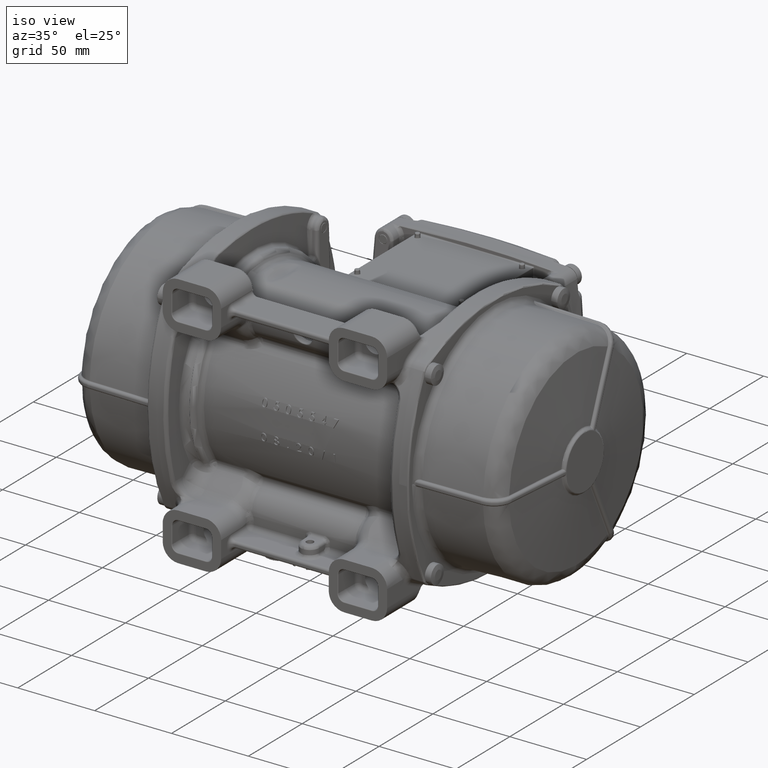
[diagram: clean part render]
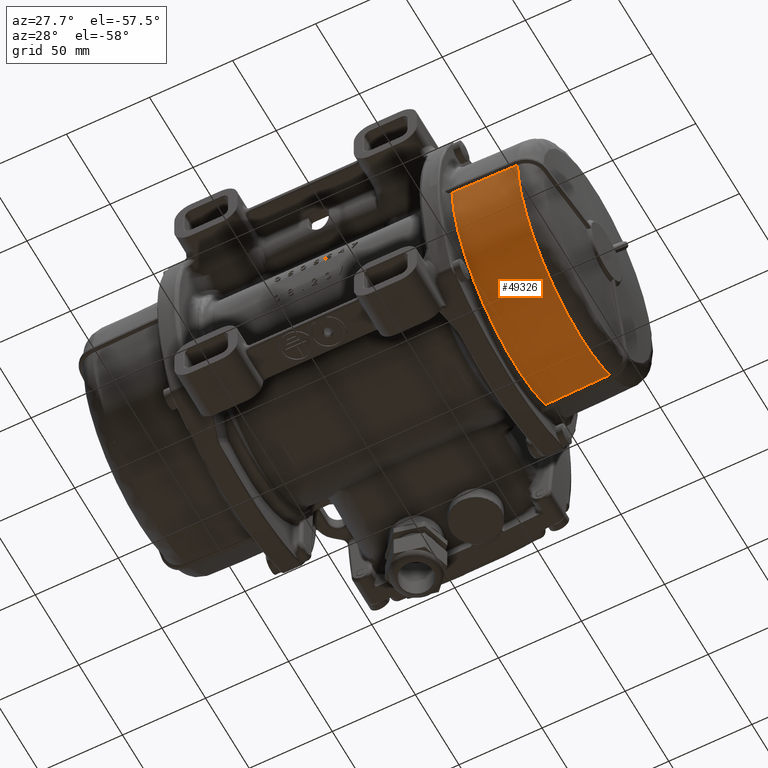
[diagram: tour spotlight — one face highlighted and labeled with its STEP entity id]
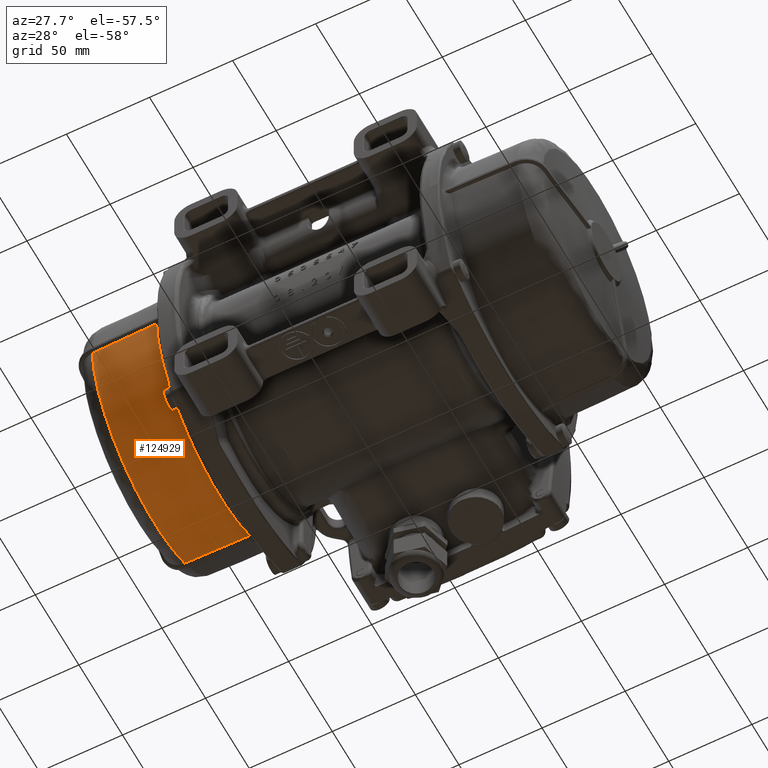
[diagram: tour spotlight — one face highlighted and labeled with its STEP entity id]
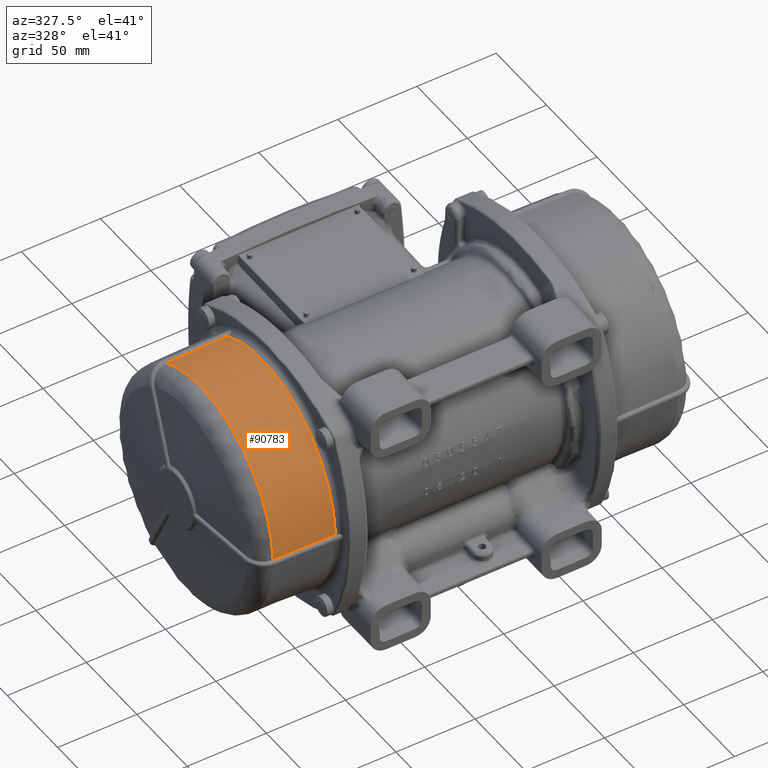
[diagram: tour spotlight — one face highlighted and labeled with its STEP entity id]
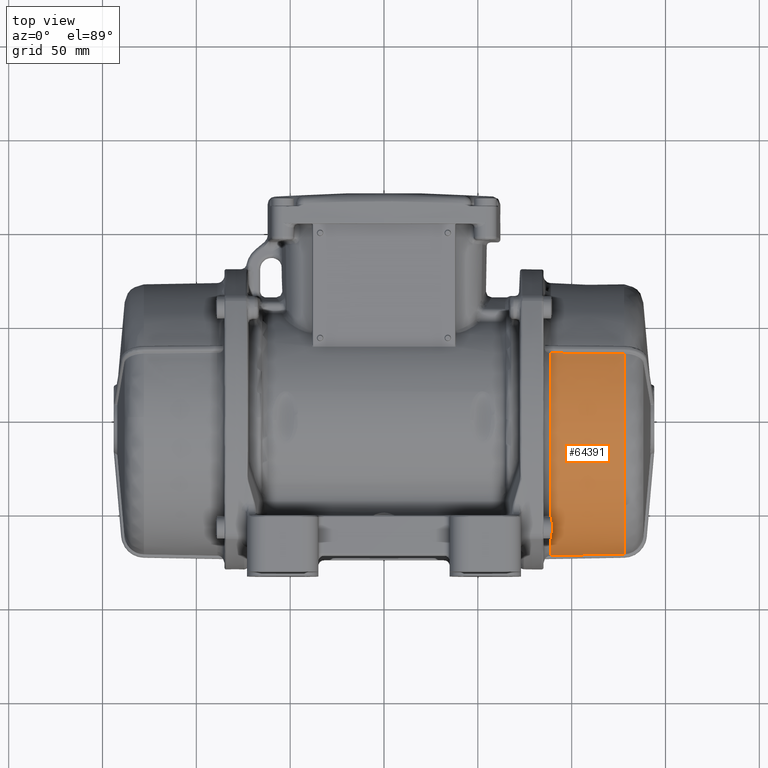
[diagram: tour spotlight — one face highlighted and labeled with its STEP entity id]
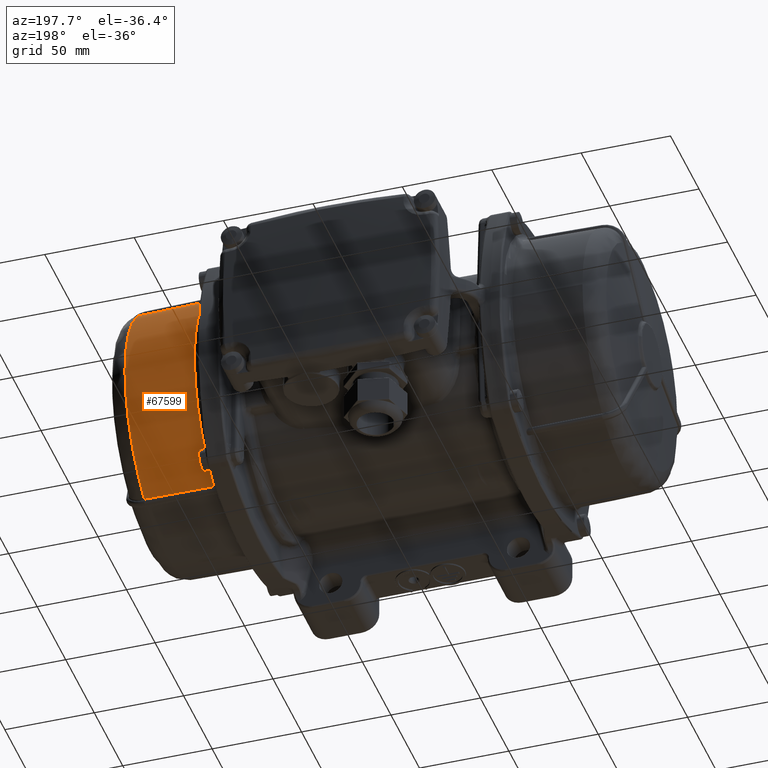
[diagram: tour spotlight — one face highlighted and labeled with its STEP entity id]
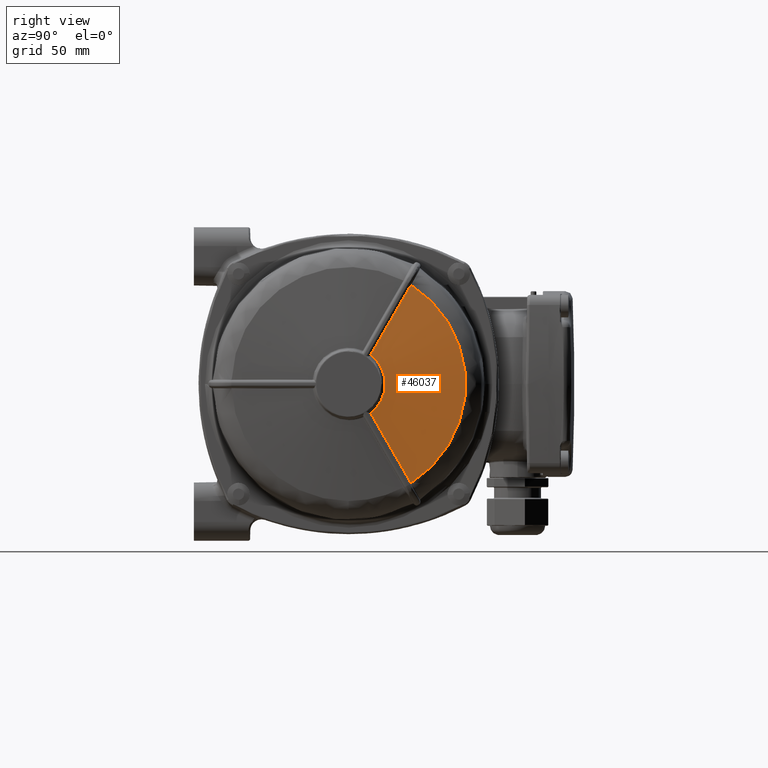
[diagram: tour spotlight — one face highlighted and labeled with its STEP entity id]
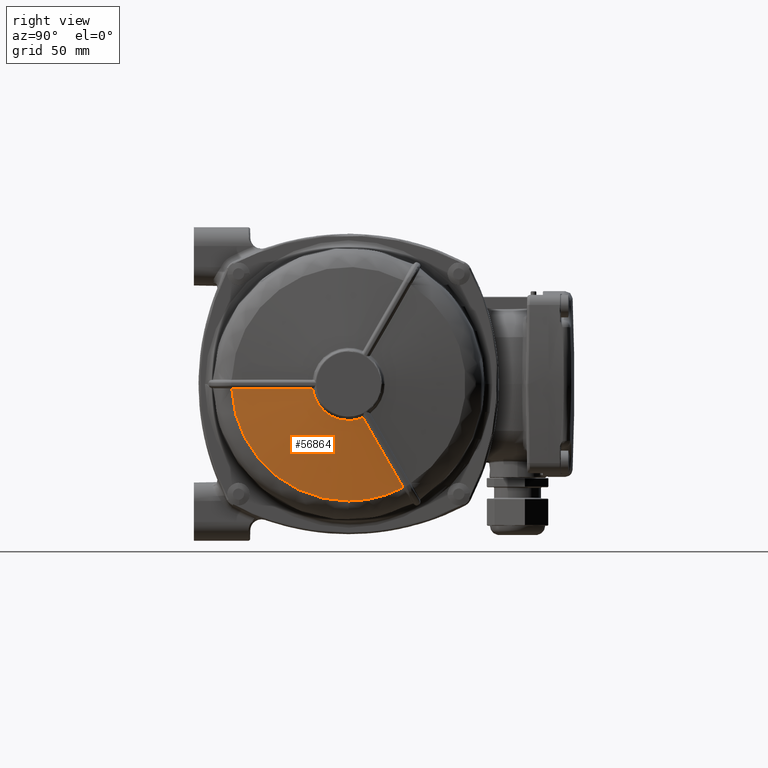
[diagram: tour spotlight — one face highlighted and labeled with its STEP entity id]
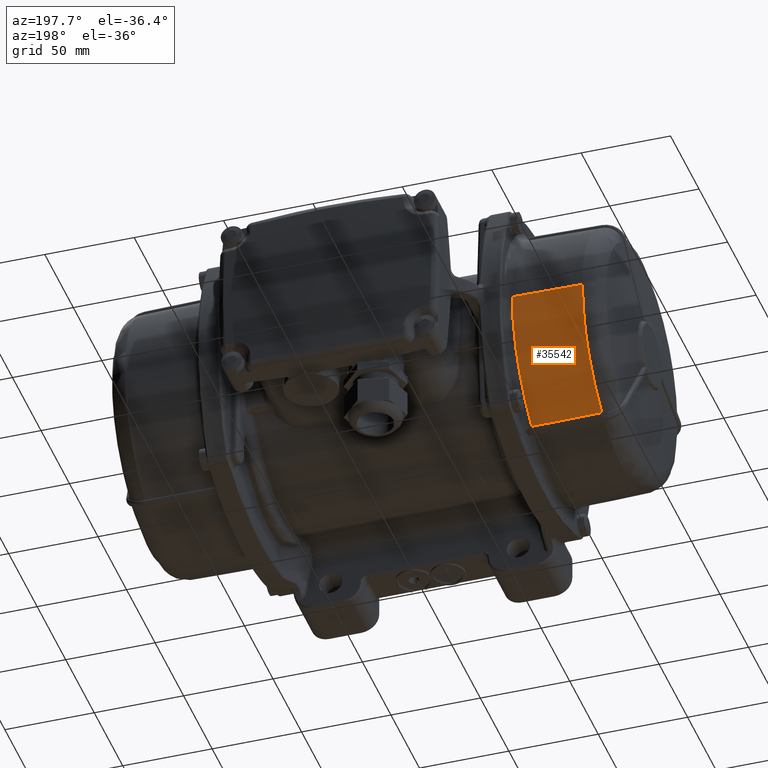
[diagram: tour spotlight — one face highlighted and labeled with its STEP entity id]
A machine part: a face-by-face anatomy tour. The part has 1796 B-rep faces; the first image is the clean iso view, then the 8 largest visible faces are spotlighted one at a time (largest first), each with its STEP entity span.

Face 1 — auxiliary view, entity #49326. In plain terms, the highlighted conical surface has half-angle 1 deg.
Definition (entity closure, byte-faithful):
#2371 = CARTESIAN_POINT ( 'NONE',  ( 127.9222009179933366, -56.33055942910262104, -44.96918742717282669 ) ) ;
#3004 = CARTESIAN_POINT ( 'NONE',  ( 127.9223881733237391, -4.608743817161495393, -71.93134748795786493 ) ) ;
#3615 = CARTESIAN_POINT ( 'NONE',  ( 127.9222441307618681, -46.70256307570493703, -54.90200576169507940 ) ) ;
#5054 = CARTESIAN_POINT ( 'NONE',  ( 127.9220567947570117, 33.88554068718205059, -63.44989925844041068 ) ) ;
#6288 = CARTESIAN_POINT ( 'NONE',  ( 127.9220567947570117, 33.88554068718205059, -63.44989925844041068 ) ) ;
#7252 = ORIENTED_EDGE ( 'NONE', *, *, #10697, .T. ) ;
#9414 = B_SPLINE_CURVE_WITH_KNOTS ( 'NONE', 3,
 ( #70150, #3004, #90700, #22176, #71427, #31735, #99730, #70794, #3615, #99097, #2371, #30492, #100995, #29847, #12598, #50266, #21548, #20921 ),
 .UNSPECIFIED., .F., .F.,
 ( 4, 2, 2, 2, 2, 2, 2, 2, 4 ),
 ( 0.000000000000000000, 0.1249999999999999167, 0.2499999999999998335, 0.3749999999999997780, 0.4999999999999997780, 0.6249999999999997780, 0.7499999999999997780, 0.8750000000000000000, 1.000000000000000000 ),
 .UNSPECIFIED. ) ;
#10697 = EDGE_CURVE ( 'NONE', #53705, #76537, #69317, .T. ) ;
#10960 = CARTESIAN_POINT ( 'NONE',  ( 127.9220568754313945, -71.89199496755290397, -2.379210573208069945 ) ) ;
#12598 = CARTESIAN_POINT ( 'NONE',  ( 127.9221144924561884, -69.08392614389534003, -20.56139853992423028 ) ) ;
#13548 = CARTESIAN_POINT ( 'NONE',  ( 88.93019037425089834, 34.22591339665670063, -64.03970188577260103 ) ) ;
#14908 = CARTESIAN_POINT ( 'NONE',  ( 127.9222873166388723, 11.76082028664047208, -71.20662479822522073 ) ) ;
#19360 = B_SPLINE_CURVE_WITH_KNOTS ( 'NONE', 3,
 ( #72874, #92786, #81237, #5054 ),
 .UNSPECIFIED., .F., .F.,
 ( 4, 4 ),
 ( 0.000000000000000000, 1.000000000000000000 ),
 .UNSPECIFIED. ) ;
#20921 = CARTESIAN_POINT ( 'NONE',  ( 127.9220568754313945, -71.89199496755290397, -2.379210573208069945 ) ) ;
#21548 = CARTESIAN_POINT ( 'NONE',  ( 127.9220712796876285, -71.73955530785151780, -6.985433026160089653 ) ) ;
#22176 = CARTESIAN_POINT ( 'NONE',  ( 127.9223449605551508, -18.26511830160353256, -69.72621338773849686 ) ) ;
#24481 = CARTESIAN_POINT ( 'NONE',  ( 127.9220567947570117, 33.88554068718205059, -63.44989925844041068 ) ) ;
#25412 = ORIENTED_EDGE ( 'NONE', *, *, #101241, .T. ) ;
#27840 = AXIS2_PLACEMENT_3D ( 'NONE', #109927, #99664, #31037 ) ;
#28491 = ORIENTED_EDGE ( 'NONE', *, *, #110291, .T. ) ;
#29847 = CARTESIAN_POINT ( 'NONE',  ( 127.9221288967123371, -67.62131373392264777, -24.95431533131548463 ) ) ;
#30492 = CARTESIAN_POINT ( 'NONE',  ( 127.9221721094809823, -61.60888079395975581, -37.41263988431607146 ) ) ;
#30741 = AXIS2_PLACEMENT_3D ( 'NONE', #74575, #106649, #59088 ) ;
#31037 = DIRECTION ( 'NONE',  ( -3.822452397924781266E-16, 1.000000000000000000, 0.000000000000000000 ) ) ;
#31735 = CARTESIAN_POINT ( 'NONE',  ( 127.9223017477866051, -31.24873919983736670, -64.95287358803322775 ) ) ;
#34046 = CARTESIAN_POINT ( 'NONE',  ( 127.9221720556979989, 23.17003752515295645, -68.35093239662801068 ) ) ;
#35055 = CARTESIAN_POINT ( 'NONE',  ( 88.93019037425099782, -72.57296538218960791, -2.379340473656645027 ) ) ;
#36079 = FACE_OUTER_BOUND ( 'NONE', #57310, .T. ) ;
#40004 = CIRCLE ( 'NONE', #27840, 72.61195883223420822 ) ;
#40241 = B_SPLINE_CURVE_WITH_KNOTS ( 'NONE', 3,
 ( #24481, #82745, #34046, #14908, #125793, #77581 ),
 .UNSPECIFIED., .F., .F.,
 ( 4, 2, 4 ),
 ( 0.000000000000000000, 0.5000000000000000000, 1.000000000000000000 ),
 .UNSPECIFIED. ) ;
#41781 = ORIENTED_EDGE ( 'NONE', *, *, #88454, .T. ) ;
#44355 = VERTEX_POINT ( 'NONE', #13548 ) ;
#48596 = EDGE_CURVE ( 'NONE', #108714, #79716, #40241, .T. ) ;
#49326 = ADVANCED_FACE ( 'NONE', ( #36079 ), #81861, .T. ) ;
#49854 = CARTESIAN_POINT ( 'NONE',  ( 114.9247679879215980, -72.11898394289170255, -2.379323840899814968 ) ) ;
#50266 = CARTESIAN_POINT ( 'NONE',  ( 127.9220856839438341, -71.14307031300077711, -11.57685536552211580 ) ) ;
#53705 = VERTEX_POINT ( 'NONE', #71750 ) ;
#56723 = CARTESIAN_POINT ( 'NONE',  ( 127.9224025775800015, 4.284600312251070252E-13, -71.93134723653049889 ) ) ;
#57310 = EDGE_LOOP ( 'NONE', ( #25412, #28491, #62802, #41781, #7252 ) ) ;
#59088 = DIRECTION ( 'NONE',  ( 1.911226198962390633E-16, -1.000000000000000000, 0.000000000000000000 ) ) ;
#62802 = ORIENTED_EDGE ( 'NONE', *, *, #48596, .T. ) ;
#69317 = B_SPLINE_CURVE_WITH_KNOTS ( 'NONE', 3,
 ( #10960, #49854, #89009, #35055 ),
 .UNSPECIFIED., .F., .F.,
 ( 4, 4 ),
 ( 0.000000000000000000, 1.000000000000000000 ),
 .UNSPECIFIED. ) ;
#70150 = CARTESIAN_POINT ( 'NONE',  ( 127.9224025775800015, 4.284600312251070252E-13, -71.93134723653049889 ) ) ;
#70794 = CARTESIAN_POINT ( 'NONE',  ( 127.9222585350180736, -43.08138450676559472, -57.78714309308909947 ) ) ;
#71427 = CARTESIAN_POINT ( 'NONE',  ( 127.9223305562989736, -22.70400890962901030, -68.40970249907515210 ) ) ;
#71750 = CARTESIAN_POINT ( 'NONE',  ( 127.9220568754313945, -71.89199496755290397, -2.379210573208069945 ) ) ;
#72874 = CARTESIAN_POINT ( 'NONE',  ( 88.93019037425089834, 34.22591339665670063, -64.03970188577260103 ) ) ;
#74575 = CARTESIAN_POINT ( 'NONE',  ( 88.93019037425111151, 2.081668171172170091E-14, 1.387778780781445991E-14 ) ) ;
#76537 = VERTEX_POINT ( 'NONE', #113875 ) ;
#77581 = CARTESIAN_POINT ( 'NONE',  ( 127.9224025775800015, 4.284600312251070252E-13, -71.93134723653049889 ) ) ;
#79716 = VERTEX_POINT ( 'NONE', #56723 ) ;
#81237 = CARTESIAN_POINT ( 'NONE',  ( 114.9247679879215980, 33.99893708139779847, -63.64653411011560280 ) ) ;
#81861 = CONICAL_SURFACE ( 'NONE', #30741, 72.61195883223420822, 0.01745329251993518738 ) ;
#82745 = CARTESIAN_POINT ( 'NONE',  ( 127.9221144252274911, 28.69833524957887505, -66.22013515485774349 ) ) ;
#88454 = EDGE_CURVE ( 'NONE', #79716, #53705, #9414, .T. ) ;
#89009 = CARTESIAN_POINT ( 'NONE',  ( 101.9274791810861842, -72.34597409142219249, -2.379367141268730279 ) ) ;
#90700 = CARTESIAN_POINT ( 'NONE',  ( 127.9223737690675335, -9.217383015973000582, -71.48705587698290742 ) ) ;
#92786 = CARTESIAN_POINT ( 'NONE',  ( 101.9274791810861842, 34.11239465644354851, -63.84313499533629255 ) ) ;
#99097 = CARTESIAN_POINT ( 'NONE',  ( 127.9222153222494853, -53.32722576166079875, -48.49295515231317211 ) ) ;
#99664 = DIRECTION ( 'NONE',  ( 1.000000000000000000, 3.822452397924785211E-16, 1.588961728866099835E-30 ) ) ;
#99730 = CARTESIAN_POINT ( 'NONE',  ( 127.9222873435303711, -35.35438482672402927, -62.81263407199894289 ) ) ;
#100995 = CARTESIAN_POINT ( 'NONE',  ( 127.9221577052247483, -63.88374861790792636, -33.38003167970741458 ) ) ;
#101241 = EDGE_CURVE ( 'NONE', #76537, #44355, #40004, .T. ) ;
#106649 = DIRECTION ( 'NONE',  ( -1.000000000000000000, -1.911226198962389894E-16, -9.556130994811959328E-17 ) ) ;
#108714 = VERTEX_POINT ( 'NONE', #6288 ) ;
#109927 = CARTESIAN_POINT ( 'NONE',  ( 88.93019037425089834, 1.962950844421094664E-14, 1.387778780781445991E-14 ) ) ;
#110291 = EDGE_CURVE ( 'NONE', #44355, #108714, #19360, .T. ) ;
#113875 = CARTESIAN_POINT ( 'NONE',  ( 88.93019037425099782, -72.57296538218960791, -2.379340473656645027 ) ) ;
#125793 = CARTESIAN_POINT ( 'NONE',  ( 127.9223449471094369, 5.880586821939228770, -71.93134824247411530 ) ) ;

Face 2 — auxiliary view, entity #124929. In plain terms, the highlighted conical surface has half-angle 1 deg.
Definition (entity closure, byte-faithful):
#5287 = DIRECTION ( 'NONE',  ( 1.000000000000000000, 1.911226198962389894E-16, -9.556130994811959328E-17 ) ) ;
#8386 = EDGE_CURVE ( 'NONE', #64588, #87109, #73688, .T. ) ;
#12869 = CIRCLE ( 'NONE', #59748, 72.61195883223420822 ) ;
#13791 = CONICAL_SURFACE ( 'NONE', #99767, 72.61195883223410874, 0.01745329251993518738 ) ;
#19930 = CARTESIAN_POINT ( 'NONE',  ( -114.9247679879215980, -72.11898394289190151, -2.379323840899045361 ) ) ;
#24266 = EDGE_CURVE ( 'NONE', #55202, #64588, #119028, .T. ) ;
#25066 = CARTESIAN_POINT ( 'NONE',  ( -88.93019037425111151, -1.110223024625155909E-13, 9.714451465470119729E-14 ) ) ;
#25248 = CARTESIAN_POINT ( 'NONE',  ( -88.93019037425089834, 34.22591339665510191, -64.03970188577331157 ) ) ;
#27141 = CARTESIAN_POINT ( 'NONE',  ( -114.9247679879215980, 33.99893708139605053, -63.64653411011629913 ) ) ;
#28228 = CARTESIAN_POINT ( 'NONE',  ( -127.9220567947570117, -71.89199496896391395, -2.379210573149795227 ) ) ;
#28841 = CARTESIAN_POINT ( 'NONE',  ( -101.9274791810861842, -72.34597409142239144, -2.379367141267930474 ) ) ;
#28940 = EDGE_LOOP ( 'NONE', ( #67904, #97493, #120022, #41556 ) ) ;
#41556 = ORIENTED_EDGE ( 'NONE', *, *, #59152, .T. ) ;
#52771 = CARTESIAN_POINT ( 'NONE',  ( -127.9220567947570117, -71.89199496896391395, -2.379210573149795227 ) ) ;
#53624 = DIRECTION ( 'NONE',  ( 3.822452397924781266E-16, -1.000000000000000000, 0.000000000000000000 ) ) ;
#54435 = DIRECTION ( 'NONE',  ( -1.911226198962393098E-16, 1.000000000000000000, 0.000000000000000000 ) ) ;
#55202 = VERTEX_POINT ( 'NONE', #98731 ) ;
#59095 = CARTESIAN_POINT ( 'NONE',  ( -88.93019037425089834, 34.22591339665510191, -64.03970188577331157 ) ) ;
#59152 = EDGE_CURVE ( 'NONE', #90994, #55202, #12869, .T. ) ;
#59748 = AXIS2_PLACEMENT_3D ( 'NONE', #102498, #81912, #53624 ) ;
#64588 = VERTEX_POINT ( 'NONE', #52771 ) ;
#66172 = CARTESIAN_POINT ( 'NONE',  ( -101.9274791810861842, 34.11239465644185032, -63.84313499533700309 ) ) ;
#67904 = ORIENTED_EDGE ( 'NONE', *, *, #24266, .T. ) ;
#72639 = CARTESIAN_POINT ( 'NONE',  ( -127.9220567947572107, -1.200367174961695942E-13, 9.714451465470129826E-14 ) ) ;
#73688 = CIRCLE ( 'NONE', #114762, 71.93135327219211206 ) ;
#73735 = FACE_OUTER_BOUND ( 'NONE', #28940, .T. ) ;
#81912 = DIRECTION ( 'NONE',  ( -1.000000000000000000, -3.822452397924785211E-16, 8.766685400640559815E-31 ) ) ;
#87109 = VERTEX_POINT ( 'NONE', #107458 ) ;
#88399 = CARTESIAN_POINT ( 'NONE',  ( -88.93019037425089834, -72.57296538218969317, -2.379340473655885191 ) ) ;
#90994 = VERTEX_POINT ( 'NONE', #59095 ) ;
#93185 = DIRECTION ( 'NONE',  ( 1.000000000000000000, -4.630343963183950190E-15, -8.766685400640559815E-31 ) ) ;
#97493 = ORIENTED_EDGE ( 'NONE', *, *, #8386, .T. ) ;
#98731 = CARTESIAN_POINT ( 'NONE',  ( -88.93019037425089834, -72.57296538218969317, -2.379340473655885191 ) ) ;
#99767 = AXIS2_PLACEMENT_3D ( 'NONE', #25066, #5287, #54435 ) ;
#102498 = CARTESIAN_POINT ( 'NONE',  ( -88.93019037425089834, -1.044121758505869863E-13, 9.714451465470119729E-14 ) ) ;
#107458 = CARTESIAN_POINT ( 'NONE',  ( -127.9220568754313945, 33.88554068642515205, -63.44989925724800628 ) ) ;
#114762 = AXIS2_PLACEMENT_3D ( 'NONE', #72639, #93185, #122737 ) ;
#114986 = CARTESIAN_POINT ( 'NONE',  ( -127.9220568754313945, 33.88554068642515205, -63.44989925724800628 ) ) ;
#119028 = B_SPLINE_CURVE_WITH_KNOTS ( 'NONE', 3,
 ( #88399, #28841, #19930, #28228 ),
 .UNSPECIFIED., .F., .F.,
 ( 4, 4 ),
 ( 0.000000000000000000, 1.000000000000000000 ),
 .UNSPECIFIED. ) ;
#120022 = ORIENTED_EDGE ( 'NONE', *, *, #126701, .T. ) ;
#121505 = B_SPLINE_CURVE_WITH_KNOTS ( 'NONE', 3,
 ( #114986, #27141, #66172, #25248 ),
 .UNSPECIFIED., .F., .F.,
 ( 4, 4 ),
 ( 0.000000000000000000, 1.000000000000000000 ),
 .UNSPECIFIED. ) ;
#122737 = DIRECTION ( 'NONE',  ( 4.630343963183951768E-15, 1.000000000000000000, 0.000000000000000000 ) ) ;
#124929 = ADVANCED_FACE ( 'NONE', ( #73735 ), #13791, .T. ) ;
#126701 = EDGE_CURVE ( 'NONE', #87109, #90994, #121505, .T. ) ;

Face 3 — auxiliary view, entity #90783. In plain terms, the highlighted conical surface has half-angle 1 deg.
Definition (entity closure, byte-faithful):
#7265 = CARTESIAN_POINT ( 'NONE',  ( -127.9220856839437488, -71.14307031300090500, 11.57685536552160421 ) ) ;
#10833 = CARTESIAN_POINT ( 'NONE',  ( -88.93019037425089834, -72.57296538218969317, 2.379340473656565091 ) ) ;
#15052 = B_SPLINE_CURVE_WITH_KNOTS ( 'NONE', 3,
 ( #114286, #124603, #55190, #44309, #104019, #65458, #44920, #16874, #84062, #25809, #123953, #64828, #55818, #123304, #35351, #7265, #112383, #74472 ),
 .UNSPECIFIED., .F., .F.,
 ( 4, 2, 2, 2, 2, 2, 2, 2, 4 ),
 ( 0.000000000000000000, 0.1250000000000001110, 0.2500000000000002220, 0.3750000000000003331, 0.5000000000000003331, 0.6250000000000003331, 0.7500000000000003331, 0.8750000000000002220, 1.000000000000000000 ),
 .UNSPECIFIED. ) ;
#15708 = DIRECTION ( 'NONE',  ( -1.911226198962393098E-16, 1.000000000000000000, 0.000000000000000000 ) ) ;
#16874 = CARTESIAN_POINT ( 'NONE',  ( -127.9222585350180452, -43.08138450676612052, 57.78714309308879393 ) ) ;
#18470 = CARTESIAN_POINT ( 'NONE',  ( -127.9223449471094369, 5.880586821938557307, 71.93134824247415793 ) ) ;
#23042 = CONICAL_SURFACE ( 'NONE', #94685, 72.61195883223410874, 0.01745329251993518738 ) ;
#25809 = CARTESIAN_POINT ( 'NONE',  ( -127.9222153222494853, -53.32722576166126771, 48.49295515231280262 ) ) ;
#28017 = CARTESIAN_POINT ( 'NONE',  ( -127.9222873166388723, 11.76082028663988055, 71.20662479822534863 ) ) ;
#28048 = CARTESIAN_POINT ( 'NONE',  ( -114.9247679879215980, -72.11898394289190151, 2.379323840899739917 ) ) ;
#29929 = CARTESIAN_POINT ( 'NONE',  ( -127.9220568754313945, -71.89199496755301766, 2.379210573207999779 ) ) ;
#30529 = CARTESIAN_POINT ( 'NONE',  ( -127.9221720556979989, 23.17003752515251946, 68.35093239662812437 ) ) ;
#35351 = CARTESIAN_POINT ( 'NONE',  ( -127.9221144924561315, -69.08392614389559583, 20.56139853992373645 ) ) ;
#35973 = ORIENTED_EDGE ( 'NONE', *, *, #95297, .T. ) ;
#37465 = AXIS2_PLACEMENT_3D ( 'NONE', #120132, #44288, #43007 ) ;
#43007 = DIRECTION ( 'NONE',  ( 3.822452397924781266E-16, -1.000000000000000000, 0.000000000000000000 ) ) ;
#44288 = DIRECTION ( 'NONE',  ( -1.000000000000000000, -3.822452397924785211E-16, 8.766685400640559815E-31 ) ) ;
#44309 = CARTESIAN_POINT ( 'NONE',  ( -127.9223449605552076, -18.26511830160425376, 69.72621338773841160 ) ) ;
#44411 = FACE_OUTER_BOUND ( 'NONE', #73542, .T. ) ;
#44920 = CARTESIAN_POINT ( 'NONE',  ( -127.9222873435304280, -35.35438482672460481, 62.81263407199871551 ) ) ;
#47437 = CARTESIAN_POINT ( 'NONE',  ( -88.93019037425089834, 34.22591339665640220, 64.03970188577279998 ) ) ;
#50710 = CARTESIAN_POINT ( 'NONE',  ( -127.9220568754313945, -71.89199496755301766, 2.379210573207999779 ) ) ;
#54014 = DIRECTION ( 'NONE',  ( 1.000000000000000000, 1.911226198962389894E-16, -9.556130994811959328E-17 ) ) ;
#54657 = CARTESIAN_POINT ( 'NONE',  ( -88.93019037425111151, -1.110223024625155909E-13, 9.714451465470119729E-14 ) ) ;
#55190 = CARTESIAN_POINT ( 'NONE',  ( -127.9223737690675051, -9.217383015973744875, 71.48705587698282216 ) ) ;
#55818 = CARTESIAN_POINT ( 'NONE',  ( -127.9221577052246914, -63.88374861790825321, 33.38003167970695273 ) ) ;
#57963 = CIRCLE ( 'NONE', #37465, 72.61195883223420822 ) ;
#64828 = CARTESIAN_POINT ( 'NONE',  ( -127.9221721094808970, -61.60888079396012529, 37.41263988431563803 ) ) ;
#65003 = CARTESIAN_POINT ( 'NONE',  ( -88.93019037425089834, 34.22591339665640220, 64.03970188577279998 ) ) ;
#65458 = CARTESIAN_POINT ( 'NONE',  ( -127.9223017477866335, -31.24873919983804171, 64.95287358803294353 ) ) ;
#66226 = CARTESIAN_POINT ( 'NONE',  ( -127.9224025775800015, 1.065878556545419925E-13, 71.93134723653059837 ) ) ;
#66431 = EDGE_CURVE ( 'NONE', #96133, #100770, #116381, .T. ) ;
#66962 = ORIENTED_EDGE ( 'NONE', *, *, #107239, .T. ) ;
#67041 = CARTESIAN_POINT ( 'NONE',  ( -127.9224025775800015, 1.065878556545419925E-13, 71.93134723653059837 ) ) ;
#67680 = CARTESIAN_POINT ( 'NONE',  ( -101.9274791810861842, -72.34597409142239144, 2.379367141268630359 ) ) ;
#68611 = CARTESIAN_POINT ( 'NONE',  ( -127.9220567947570117, 33.88554068718170242, 63.44989925844060963 ) ) ;
#70329 = ORIENTED_EDGE ( 'NONE', *, *, #73364, .T. ) ;
#73364 = EDGE_CURVE ( 'NONE', #115071, #103011, #90977, .T. ) ;
#73542 = EDGE_LOOP ( 'NONE', ( #125758, #87396, #35973, #66962, #70329 ) ) ;
#74472 = CARTESIAN_POINT ( 'NONE',  ( -127.9220568754313945, -71.89199496755301766, 2.379210573207999779 ) ) ;
#84062 = CARTESIAN_POINT ( 'NONE',  ( -127.9222441307618396, -46.70256307570547705, 54.90200576169474544 ) ) ;
#87396 = ORIENTED_EDGE ( 'NONE', *, *, #66431, .T. ) ;
#88486 = CARTESIAN_POINT ( 'NONE',  ( -114.9247679879215980, 33.99893708139745030, 63.64653411011579465 ) ) ;
#90783 = ADVANCED_FACE ( 'NONE', ( #44411 ), #23042, .T. ) ;
#90977 = B_SPLINE_CURVE_WITH_KNOTS ( 'NONE', 3,
 ( #29929, #28048, #67680, #106888 ),
 .UNSPECIFIED., .F., .F.,
 ( 4, 4 ),
 ( 0.000000000000000000, 1.000000000000000000 ),
 .UNSPECIFIED. ) ;
#91765 = VERTEX_POINT ( 'NONE', #66226 ) ;
#94685 = AXIS2_PLACEMENT_3D ( 'NONE', #54657, #54014, #15708 ) ;
#95297 = EDGE_CURVE ( 'NONE', #100770, #91765, #126462, .T. ) ;
#96133 = VERTEX_POINT ( 'NONE', #65003 ) ;
#96897 = EDGE_CURVE ( 'NONE', #103011, #96133, #57963, .T. ) ;
#100770 = VERTEX_POINT ( 'NONE', #105154 ) ;
#103011 = VERTEX_POINT ( 'NONE', #10833 ) ;
#104019 = CARTESIAN_POINT ( 'NONE',  ( -127.9223305562989452, -22.70400890962971019, 68.40970249907496736 ) ) ;
#105154 = CARTESIAN_POINT ( 'NONE',  ( -127.9220567947570117, 33.88554068718170242, 63.44989925844060963 ) ) ;
#106230 = CARTESIAN_POINT ( 'NONE',  ( -127.9221144252274911, 28.69833524957850557, 66.22013515485780033 ) ) ;
#106888 = CARTESIAN_POINT ( 'NONE',  ( -88.93019037425089834, -72.57296538218969317, 2.379340473656565091 ) ) ;
#107239 = EDGE_CURVE ( 'NONE', #91765, #115071, #15052, .T. ) ;
#107514 = CARTESIAN_POINT ( 'NONE',  ( -127.9220567947570117, 33.88554068718170242, 63.44989925844060963 ) ) ;
#112383 = CARTESIAN_POINT ( 'NONE',  ( -127.9220712796876001, -71.73955530785163148, 6.985433026159589609 ) ) ;
#114286 = CARTESIAN_POINT ( 'NONE',  ( -127.9224025775800015, 1.065878556545419925E-13, 71.93134723653059837 ) ) ;
#115071 = VERTEX_POINT ( 'NONE', #50710 ) ;
#116170 = CARTESIAN_POINT ( 'NONE',  ( -101.9274791810861842, 34.11239465644319324, 63.84313499533650571 ) ) ;
#116381 = B_SPLINE_CURVE_WITH_KNOTS ( 'NONE', 3,
 ( #47437, #116170, #88486, #68611 ),
 .UNSPECIFIED., .F., .F.,
 ( 4, 4 ),
 ( 0.000000000000000000, 1.000000000000000000 ),
 .UNSPECIFIED. ) ;
#120132 = CARTESIAN_POINT ( 'NONE',  ( -88.93019037425089834, -1.044121758505869863E-13, 9.714451465470119729E-14 ) ) ;
#123304 = CARTESIAN_POINT ( 'NONE',  ( -127.9221288967122803, -67.62131373392291778, 24.95431533131502633 ) ) ;
#123953 = CARTESIAN_POINT ( 'NONE',  ( -127.9222009179932797, -56.33055942910306868, 44.96918742717242878 ) ) ;
#124603 = CARTESIAN_POINT ( 'NONE',  ( -127.9223881733238244, -4.608743817162234357, 71.93134748795785072 ) ) ;
#125758 = ORIENTED_EDGE ( 'NONE', *, *, #96897, .T. ) ;
#126462 = B_SPLINE_CURVE_WITH_KNOTS ( 'NONE', 3,
 ( #107514, #106230, #30529, #28017, #18470, #67041 ),
 .UNSPECIFIED., .F., .F.,
 ( 4, 2, 4 ),
 ( 0.000000000000000000, 0.5000000000000001110, 1.000000000000000000 ),
 .UNSPECIFIED. ) ;

Face 4 — top view, entity #64391. In plain terms, the highlighted conical surface has half-angle 1 deg.
Definition (entity closure, byte-faithful):
#2921 = EDGE_LOOP ( 'NONE', ( #77542, #17420, #87400, #54837 ) ) ;
#6662 = EDGE_CURVE ( 'NONE', #58421, #121141, #80830, .T. ) ;
#9133 = DIRECTION ( 'NONE',  ( -1.000000000000000000, -1.911226198962389894E-16, -9.556130994811959328E-17 ) ) ;
#15095 = AXIS2_PLACEMENT_3D ( 'NONE', #112355, #52613, #23925 ) ;
#17420 = ORIENTED_EDGE ( 'NONE', *, *, #24962, .T. ) ;
#17805 = CARTESIAN_POINT ( 'NONE',  ( 114.9247679879215980, -72.11898394289180203, 2.379323840898990294 ) ) ;
#20003 = FACE_OUTER_BOUND ( 'NONE', #2921, .T. ) ;
#22413 = CARTESIAN_POINT ( 'NONE',  ( 127.9220567947570117, -71.89199496896381447, 2.379210573149729946 ) ) ;
#22649 = CARTESIAN_POINT ( 'NONE',  ( 114.9247679879215980, 33.99893708139610027, 63.64653411011650519 ) ) ;
#23925 = DIRECTION ( 'NONE',  ( -3.822452397924781266E-16, 1.000000000000000000, 0.000000000000000000 ) ) ;
#24962 = EDGE_CURVE ( 'NONE', #79916, #58421, #47453, .T. ) ;
#25120 = CARTESIAN_POINT ( 'NONE',  ( 88.93019037425089834, -72.57296538218960791, 2.379340473655819910 ) ) ;
#31587 = CARTESIAN_POINT ( 'NONE',  ( 88.93019037425089834, 34.22591339665505217, 64.03970188577349631 ) ) ;
#43123 = CARTESIAN_POINT ( 'NONE',  ( 88.93019037425089834, 34.22591339665505217, 64.03970188577349631 ) ) ;
#43623 = CARTESIAN_POINT ( 'NONE',  ( 127.9220568754313945, 33.88554068642515205, 63.44989925724821234 ) ) ;
#47453 = CIRCLE ( 'NONE', #119273, 71.93135327219211206 ) ;
#52613 = DIRECTION ( 'NONE',  ( 1.000000000000000000, 3.822452397924785211E-16, 1.588961728866099835E-30 ) ) ;
#54562 = CONICAL_SURFACE ( 'NONE', #95618, 72.61195883223420822, 0.01745329251993518738 ) ;
#54620 = B_SPLINE_CURVE_WITH_KNOTS ( 'NONE', 3,
 ( #104311, #76048, #17805, #96560 ),
 .UNSPECIFIED., .F., .F.,
 ( 4, 4 ),
 ( 0.000000000000000000, 1.000000000000000000 ),
 .UNSPECIFIED. ) ;
#54837 = ORIENTED_EDGE ( 'NONE', *, *, #91991, .T. ) ;
#56147 = CARTESIAN_POINT ( 'NONE',  ( 127.9220568754313945, 33.88554068642515205, 63.44989925724821234 ) ) ;
#56369 = EDGE_CURVE ( 'NONE', #87437, #79916, #54620, .T. ) ;
#58421 = VERTEX_POINT ( 'NONE', #56147 ) ;
#64391 = ADVANCED_FACE ( 'NONE', ( #20003 ), #54562, .T. ) ;
#76048 = CARTESIAN_POINT ( 'NONE',  ( 101.9274791810861842, -72.34597409142229196, 2.379367141267890062 ) ) ;
#77542 = ORIENTED_EDGE ( 'NONE', *, *, #56369, .T. ) ;
#78250 = CARTESIAN_POINT ( 'NONE',  ( 88.93019037425111151, 2.081668171172170091E-14, 1.387778780781445991E-14 ) ) ;
#79916 = VERTEX_POINT ( 'NONE', #22413 ) ;
#80830 = B_SPLINE_CURVE_WITH_KNOTS ( 'NONE', 3,
 ( #43623, #22649, #90543, #31587 ),
 .UNSPECIFIED., .F., .F.,
 ( 4, 4 ),
 ( 0.000000000000000000, 1.000000000000000000 ),
 .UNSPECIFIED. ) ;
#82095 = CARTESIAN_POINT ( 'NONE',  ( 127.9220567947572107, 2.636164979342234875E-14, 1.387778780781451829E-14 ) ) ;
#87400 = ORIENTED_EDGE ( 'NONE', *, *, #6662, .T. ) ;
#87437 = VERTEX_POINT ( 'NONE', #25120 ) ;
#90543 = CARTESIAN_POINT ( 'NONE',  ( 101.9274791810861842, 34.11239465644190005, 63.84313499533719494 ) ) ;
#91991 = EDGE_CURVE ( 'NONE', #121141, #87437, #121544, .T. ) ;
#95618 = AXIS2_PLACEMENT_3D ( 'NONE', #78250, #9133, #125832 ) ;
#96560 = CARTESIAN_POINT ( 'NONE',  ( 127.9220567947570117, -71.89199496896381447, 2.379210573149729946 ) ) ;
#104311 = CARTESIAN_POINT ( 'NONE',  ( 88.93019037425089834, -72.57296538218960791, 2.379340473655819910 ) ) ;
#112355 = CARTESIAN_POINT ( 'NONE',  ( 88.93019037425089834, 1.962950844421094664E-14, 1.387778780781445991E-14 ) ) ;
#119273 = AXIS2_PLACEMENT_3D ( 'NONE', #82095, #121340, #121968 ) ;
#121141 = VERTEX_POINT ( 'NONE', #43123 ) ;
#121340 = DIRECTION ( 'NONE',  ( -1.000000000000000000, 4.630343963183950190E-15, -1.643753512620105162E-30 ) ) ;
#121544 = CIRCLE ( 'NONE', #15095, 72.61195883223420822 ) ;
#121968 = DIRECTION ( 'NONE',  ( -4.630343963183951768E-15, -1.000000000000000000, 0.000000000000000000 ) ) ;
#125832 = DIRECTION ( 'NONE',  ( 1.911226198962390633E-16, -1.000000000000000000, 0.000000000000000000 ) ) ;

Face 5 — auxiliary view, entity #67599. In plain terms, the highlighted conical surface has half-angle 1 deg.
Definition (entity closure, byte-faithful):
#3773 = VERTEX_POINT ( 'NONE', #96487 ) ;
#4464 = CARTESIAN_POINT ( 'NONE',  ( 88.93019037425089834, 72.61195883223420822, 1.387778780781445991E-14 ) ) ;
#7166 = VERTEX_POINT ( 'NONE', #4464 ) ;
#12531 = DIRECTION ( 'NONE',  ( -3.822452397924781266E-16, 1.000000000000000000, 0.000000000000000000 ) ) ;
#13978 = AXIS2_PLACEMENT_3D ( 'NONE', #41812, #50829, #12531 ) ;
#21910 = EDGE_LOOP ( 'NONE', ( #53683, #23572, #31076, #35742, #74340 ) ) ;
#22945 = CARTESIAN_POINT ( 'NONE',  ( 127.9220567947572107, 2.636164979342234875E-14, 1.387778780781451829E-14 ) ) ;
#23572 = ORIENTED_EDGE ( 'NONE', *, *, #72070, .T. ) ;
#25218 = CARTESIAN_POINT ( 'NONE',  ( 88.93019037425089834, 38.34705198553429994, -61.66036141211630195 ) ) ;
#31076 = ORIENTED_EDGE ( 'NONE', *, *, #116358, .T. ) ;
#32783 = EDGE_CURVE ( 'NONE', #93221, #94319, #89860, .T. ) ;
#32831 = B_SPLINE_CURVE_WITH_KNOTS ( 'NONE', 3,
 ( #65487, #83479, #103433, #122721 ),
 .UNSPECIFIED., .F., .F.,
 ( 4, 4 ),
 ( 0.000000000000000000, 1.000000000000000000 ),
 .UNSPECIFIED. ) ;
#33117 = DIRECTION ( 'NONE',  ( -4.630343963183951768E-15, -1.000000000000000000, 0.000000000000000000 ) ) ;
#35742 = ORIENTED_EDGE ( 'NONE', *, *, #125991, .T. ) ;
#38320 = CARTESIAN_POINT ( 'NONE',  ( 114.9247679879215980, 38.12004686149385435, 61.26721026921720181 ) ) ;
#39096 = CIRCLE ( 'NONE', #63756, 72.61195883223420822 ) ;
#41352 = DIRECTION ( 'NONE',  ( 1.000000000000000000, 3.822452397924785211E-16, 1.588961728866099835E-30 ) ) ;
#41812 = CARTESIAN_POINT ( 'NONE',  ( 88.93019037425089834, 1.962950844421094664E-14, 1.387778780781445991E-14 ) ) ;
#50829 = DIRECTION ( 'NONE',  ( 1.000000000000000000, 3.822452397924785211E-16, 1.588961728866099835E-30 ) ) ;
#53683 = ORIENTED_EDGE ( 'NONE', *, *, #32783, .T. ) ;
#61473 = CARTESIAN_POINT ( 'NONE',  ( 127.9220567947570117, 38.00645428178154361, 61.07068868529119499 ) ) ;
#62532 = CARTESIAN_POINT ( 'NONE',  ( 88.93019037425089834, 1.962950844421094664E-14, 1.387778780781445991E-14 ) ) ;
#63756 = AXIS2_PLACEMENT_3D ( 'NONE', #62532, #41352, #102975 ) ;
#65487 = CARTESIAN_POINT ( 'NONE',  ( 127.9220568754313945, 38.00645428112749613, -61.07068868403960238 ) ) ;
#66427 = DIRECTION ( 'NONE',  ( -1.000000000000000000, -1.911226198962389894E-16, -9.556130994811959328E-17 ) ) ;
#67599 = ADVANCED_FACE ( 'NONE', ( #87559 ), #108953, .T. ) ;
#68473 = CARTESIAN_POINT ( 'NONE',  ( 127.9220567947570117, 38.00645428178154361, 61.07068868529119499 ) ) ;
#72070 = EDGE_CURVE ( 'NONE', #94319, #101528, #32831, .T. ) ;
#73473 = AXIS2_PLACEMENT_3D ( 'NONE', #22945, #83091, #33117 ) ;
#74340 = ORIENTED_EDGE ( 'NONE', *, *, #126840, .T. ) ;
#76885 = CARTESIAN_POINT ( 'NONE',  ( 88.93019037425089834, 38.34705198553269412, 61.66036141211730381 ) ) ;
#77351 = CARTESIAN_POINT ( 'NONE',  ( 88.93019037425111151, 2.081668171172170091E-14, 1.387778780781445991E-14 ) ) ;
#83091 = DIRECTION ( 'NONE',  ( -1.000000000000000000, 4.630343963183950190E-15, -1.643753512620105162E-30 ) ) ;
#83479 = CARTESIAN_POINT ( 'NONE',  ( 114.9247679879215980, 38.12004686149544597, -61.26721026921619995 ) ) ;
#85458 = CIRCLE ( 'NONE', #13978, 72.61195883223420822 ) ;
#86790 = CARTESIAN_POINT ( 'NONE',  ( 127.9220568754313945, 38.00645428112749613, -61.07068868403960238 ) ) ;
#87559 = FACE_OUTER_BOUND ( 'NONE', #21910, .T. ) ;
#89860 = CIRCLE ( 'NONE', #73473, 71.93135327219211206 ) ;
#93221 = VERTEX_POINT ( 'NONE', #61473 ) ;
#93970 = B_SPLINE_CURVE_WITH_KNOTS ( 'NONE', 3,
 ( #76885, #95528, #38320, #68473 ),
 .UNSPECIFIED., .F., .F.,
 ( 4, 4 ),
 ( 0.000000000000000000, 1.000000000000000000 ),
 .UNSPECIFIED. ) ;
#94319 = VERTEX_POINT ( 'NONE', #86790 ) ;
#95528 = CARTESIAN_POINT ( 'NONE',  ( 101.9274791810861842, 38.23357943497855160, 61.46376785406899756 ) ) ;
#96487 = CARTESIAN_POINT ( 'NONE',  ( 88.93019037425089834, 38.34705198553269412, 61.66036141211730381 ) ) ;
#101528 = VERTEX_POINT ( 'NONE', #25218 ) ;
#102975 = DIRECTION ( 'NONE',  ( -3.822452397924781266E-16, 1.000000000000000000, 0.000000000000000000 ) ) ;
#103433 = CARTESIAN_POINT ( 'NONE',  ( 101.9274791810861842, 38.23357943498015032, -61.46376785406790333 ) ) ;
#108953 = CONICAL_SURFACE ( 'NONE', #119208, 72.61195883223420822, 0.01745329251993518738 ) ;
#116358 = EDGE_CURVE ( 'NONE', #101528, #7166, #39096, .T. ) ;
#116529 = DIRECTION ( 'NONE',  ( 1.911226198962390633E-16, -1.000000000000000000, 0.000000000000000000 ) ) ;
#119208 = AXIS2_PLACEMENT_3D ( 'NONE', #77351, #66427, #116529 ) ;
#122721 = CARTESIAN_POINT ( 'NONE',  ( 88.93019037425089834, 38.34705198553429994, -61.66036141211630195 ) ) ;
#125991 = EDGE_CURVE ( 'NONE', #7166, #3773, #85458, .T. ) ;
#126840 = EDGE_CURVE ( 'NONE', #3773, #93221, #93970, .T. ) ;

Face 6 — right view, entity #46037. In plain terms, the highlighted conical surface has half-angle 85 deg.
Definition (entity closure, byte-faithful):
#1315 = DIRECTION ( 'NONE',  ( -1.000000000000000000, 1.021822341384124001E-61, -1.288153569953683981E-30 ) ) ;
#3825 = CARTESIAN_POINT ( 'NONE',  ( 138.9237991000887291, 29.07845882658707026, 45.58055362624131135 ) ) ;
#3978 = CARTESIAN_POINT ( 'NONE',  ( 140.0794687153855307, 22.46366108374693482, -34.12675436321126199 ) ) ;
#5074 = CARTESIAN_POINT ( 'NONE',  ( 138.1991966399523903, 33.22213815732415298, 52.75957574169659381 ) ) ;
#5222 = CARTESIAN_POINT ( 'NONE',  ( 141.0233140645216281, 17.05637024081291742, -24.76249604336208421 ) ) ;
#5860 = CARTESIAN_POINT ( 'NONE',  ( 141.1003156849387494, 16.61487972764329868, -23.99779310342707106 ) ) ;
#7578 = CARTESIAN_POINT ( 'NONE',  ( 140.9593571089791055, 17.42314174798967841, 25.39747251121876914 ) ) ;
#8155 = FACE_OUTER_BOUND ( 'NONE', #83269, .T. ) ;
#8222 = CARTESIAN_POINT ( 'NONE',  ( 139.5423152359096264, 25.53915662532040898, 39.45121283959917236 ) ) ;
#8843 = CARTESIAN_POINT ( 'NONE',  ( 140.0788747055139254, 22.46706448106196774, 34.13264255312871853 ) ) ;
#9498 = CARTESIAN_POINT ( 'NONE',  ( 141.9546295922314130, 11.70640392578741995, 15.49916682520870026 ) ) ;
#14203 = CARTESIAN_POINT ( 'NONE',  ( 141.2471325409900658, 15.77310722133558052, -22.53912047503273897 ) ) ;
#14818 = CARTESIAN_POINT ( 'NONE',  ( 140.4248269890017582, 20.48624644913545367, -30.70166876432421432 ) ) ;
#16177 = CONICAL_SURFACE ( 'NONE', #83595, 62.34808173623879668, 1.483529864195180625 ) ;
#17837 = CARTESIAN_POINT ( 'NONE',  ( 141.0035522059474715, 17.16973099294109417, 24.95868473716976865 ) ) ;
#19092 = CARTESIAN_POINT ( 'NONE',  ( 141.0170842445280073, 17.09213829331280365, 24.82432285030684582 ) ) ;
#19247 = DIRECTION ( 'NONE',  ( 0.000000000000000000, -1.000000000000000000, -7.932457474157091124E-32 ) ) ;
#20504 = CARTESIAN_POINT ( 'NONE',  ( 141.9546295920592058, 3.110349645620010089E-14, 1.040834085586083941E-14 ) ) ;
#20653 = CARTESIAN_POINT ( 'NONE',  ( 141.9546295922314130, 11.70640392578710021, -15.49916682520879974 ) ) ;
#23787 = CARTESIAN_POINT ( 'NONE',  ( 140.1184868047554914, 22.24027276755571947, -33.73986446978319975 ) ) ;
#24107 = CARTESIAN_POINT ( 'NONE',  ( 141.9546295922314130, 11.70640392578741995, 15.49916682520870026 ) ) ;
#24391 = CARTESIAN_POINT ( 'NONE',  ( 140.7407592022069593, 18.67640683563363879, -27.56730151292268260 ) ) ;
#25005 = CARTESIAN_POINT ( 'NONE',  ( 140.1574225941463112, 22.01735595720725058, -33.35377284396471964 ) ) ;
#25460 = ORIENTED_EDGE ( 'NONE', *, *, #110981, .T. ) ;
#26126 = CARTESIAN_POINT ( 'NONE',  ( 139.8209714794982403, 23.94377014076162169, 36.68938574434965005 ) ) ;
#26294 = EDGE_CURVE ( 'NONE', #97688, #67214, #92940, .T. ) ;
#27385 = CARTESIAN_POINT ( 'NONE',  ( 139.9201122515877103, 23.37609769779779612, 35.70663644922650093 ) ) ;
#27953 = DIRECTION ( 'NONE',  ( 0.000000000000000000, -1.000000000000000000, 0.000000000000000000 ) ) ;
#28638 = CARTESIAN_POINT ( 'NONE',  ( 140.0519839856139583, 22.62102505091507254, 34.39926851547687647 ) ) ;
#31285 = DIRECTION ( 'NONE',  ( 0.000000000000000000, -1.000000000000000000, -7.932457474157091124E-32 ) ) ;
#32697 = CARTESIAN_POINT ( 'NONE',  ( 141.0207192782627317, 17.07124841900872170, -24.78826119340446965 ) ) ;
#33313 = CARTESIAN_POINT ( 'NONE',  ( 140.0890720118442232, 22.40867970040814683, -34.03153307475724176 ) ) ;
#33954 = CARTESIAN_POINT ( 'NONE',  ( 141.2028138801350963, 16.02722342704231551, -22.97952893569606303 ) ) ;
#34568 = CARTESIAN_POINT ( 'NONE',  ( 138.1991966399519640, 33.22213815742745169, -52.75957574163690111 ) ) ;
#37470 = DIRECTION ( 'NONE',  ( -1.000000000000000000, 0.000000000000000000, 0.000000000000000000 ) ) ;
#38156 = CARTESIAN_POINT ( 'NONE',  ( 140.0245183260531405, 22.77828191126843649, 34.67158390628926412 ) ) ;
#42217 = CARTESIAN_POINT ( 'NONE',  ( 138.5778639664397929, 31.05637222241296413, -49.00854475635608054 ) ) ;
#42865 = CARTESIAN_POINT ( 'NONE',  ( 141.4591902740440901, 14.55659554537343858, -20.43110315344952710 ) ) ;
#42915 = AXIS2_PLACEMENT_3D ( 'NONE', #104151, #115044, #106680 ) ;
#44747 = CARTESIAN_POINT ( 'NONE',  ( 141.0188647601635523, 17.08188203843132413, -24.80667563947930887 ) ) ;
#46037 = ADVANCED_FACE ( 'NONE', ( #8155 ), #16177, .T. ) ;
#46527 = CARTESIAN_POINT ( 'NONE',  ( 140.7376615752536111, 18.69406306928082273, 27.59790290289545212 ) ) ;
#47786 = CARTESIAN_POINT ( 'NONE',  ( 140.0656331385309841, 22.54287736903418704, 34.26393629171511179 ) ) ;
#48401 = CARTESIAN_POINT ( 'NONE',  ( 140.0782573886482680, 22.47059882288790789, 34.13876347770096231 ) ) ;
#50210 = ORIENTED_EDGE ( 'NONE', *, *, #94877, .T. ) ;
#52648 = ORIENTED_EDGE ( 'NONE', *, *, #64696, .F. ) ;
#54211 = CARTESIAN_POINT ( 'NONE',  ( 139.3938065668186823, 26.38918659421793578, 40.92294497502944495 ) ) ;
#55497 = CARTESIAN_POINT ( 'NONE',  ( 141.0144873557134702, 17.10702888064292893, 24.85010817962274388 ) ) ;
#57389 = CARTESIAN_POINT ( 'NONE',  ( 141.3811491175513879, 15.00492025183129208, 21.20732074280729051 ) ) ;
#58040 = CARTESIAN_POINT ( 'NONE',  ( 141.0177512320649100, 17.08831377821127262, 24.81770009431066271 ) ) ;
#60738 = CARTESIAN_POINT ( 'NONE',  ( 138.1991966399523903, 33.22213815732415298, 52.75957574169659381 ) ) ;
#61479 = CARTESIAN_POINT ( 'NONE',  ( 141.0183819549311295, 17.08465040135594748, -24.81146963541043604 ) ) ;
#62769 = CARTESIAN_POINT ( 'NONE',  ( 139.8312172190075273, 23.88496720795769335, -36.58827191599380058 ) ) ;
#63415 = CARTESIAN_POINT ( 'NONE',  ( 141.0388447577428224, 16.96732069284828626, -24.60827762632159477 ) ) ;
#64021 = CARTESIAN_POINT ( 'NONE',  ( 140.0806342401039899, 22.45698814470368987, -34.11519768446957102 ) ) ;
#64696 = EDGE_CURVE ( 'NONE', #96595, #101477, #118868, .T. ) ;
#65148 = CARTESIAN_POINT ( 'NONE',  ( 140.0724367957735694, 22.50392375408844714, 34.19647652342472099 ) ) ;
#65768 = CARTESIAN_POINT ( 'NONE',  ( 140.8461586766935341, 18.07214212293585476, 26.52112338628218779 ) ) ;
#66413 = CARTESIAN_POINT ( 'NONE',  ( 140.6623752164899201, 19.12550359420816193, 28.34495164622609664 ) ) ;
#67214 = VERTEX_POINT ( 'NONE', #20653 ) ;
#67654 = CARTESIAN_POINT ( 'NONE',  ( 140.0787419944550436, 22.46782429541197601, 34.13395843238270544 ) ) ;
#72415 = CARTESIAN_POINT ( 'NONE',  ( 140.0841518004533270, 22.43684918488334645, -34.08031946763593822 ) ) ;
#74294 = CARTESIAN_POINT ( 'NONE',  ( 141.6933170017715895, 13.21165389646883348, -18.10238159969470217 ) ) ;
#81400 = CARTESIAN_POINT ( 'NONE',  ( 140.0816897934108169, 22.45094482236912015, -34.10473140790664814 ) ) ;
#82656 = CARTESIAN_POINT ( 'NONE',  ( 141.9546295922314130, 11.70640392578710021, -15.49916682520879974 ) ) ;
#83089 = EDGE_CURVE ( 'NONE', #67214, #101477, #91082, .T. ) ;
#83269 = EDGE_LOOP ( 'NONE', ( #50210, #125912, #121669, #52648, #25460 ) ) ;
#83595 = AXIS2_PLACEMENT_3D ( 'NONE', #96523, #37470, #27953 ) ;
#83889 = CARTESIAN_POINT ( 'NONE',  ( 141.1347466269825759, 16.41748025352246998, -23.65576756521056723 ) ) ;
#84996 = CARTESIAN_POINT ( 'NONE',  ( 140.0775303865487444, 22.47476115099048855, 34.14597196675160262 ) ) ;
#85041 = AXIS2_PLACEMENT_3D ( 'NONE', #20504, #107013, #19247 ) ;
#85629 = CARTESIAN_POINT ( 'NONE',  ( 140.2593488024375574, 21.43379207326612956, 32.34317287155516141 ) ) ;
#86910 = CARTESIAN_POINT ( 'NONE',  ( 141.8324501887083784, 12.41025257033027529, 16.71764606209053028 ) ) ;
#87543 = CARTESIAN_POINT ( 'NONE',  ( 141.2081119976755872, 15.99678242518012183, 22.92753588361711792 ) ) ;
#90831 = AXIS2_PLACEMENT_3D ( 'NONE', #119177, #1315, #31285 ) ;
#91050 = CARTESIAN_POINT ( 'NONE',  ( 138.9238667862545640, 29.07806425282651830, -45.57988765512020990 ) ) ;
#91082 = B_SPLINE_CURVE_WITH_KNOTS ( 'NONE', 3,
 ( #82656, #112222, #74294, #42865, #93598, #14203, #33954, #83889, #5860, #111591, #63415, #121896, #5222, #32697, #122526, #44747, #61479, #123141, #24391, #102603, #14818, #103231, #112837, #25005, #23787, #100725, #33313, #72415, #81400, #64021, #121259, #3978, #62769, #101981, #91050, #42217, #34568 ),
 .UNSPECIFIED., .F., .F.,
 ( 4, 2, 2, 2, 1, 1, 1, 1, 1, 1, 2, 2, 2, 2, 1, 1, 1, 1, 1, 1, 1, 2, 2, 2, 4 ),
 ( 0.000000000000000000, 0.1250000000001089684, 0.1875000000001634248, 0.2187500000001906808, 0.2343750000002041145, 0.2421875000002109701, 0.2460937500002142453, 0.2480468750002158274, 0.2490234375002167155, 0.2495117187502171874, 0.2497558593752174094, 0.2500000000002176592, 0.3750000000003249068, 0.4375000000003785305, 0.4687500000004052314, 0.4843750000004185541, 0.4921875000004253264, 0.4960937500004288792, 0.4980468750004306000, 0.4990234375004312661, 0.4995117187504314882, 0.4997558593754314882, 0.5000000000004314327, 0.7500000000002157163, 1.000000000000000000 ),
 .UNSPECIFIED. ) ;
#92940 = CIRCLE ( 'NONE', #90831, 19.42328667414015086 ) ;
#93598 = CARTESIAN_POINT ( 'NONE',  ( 141.3769099998146430, 15.02878779565339151, -21.24923294287330222 ) ) ;
#93602 = CARTESIAN_POINT ( 'NONE',  ( 141.9546295920592058, 19.42328667413990217, 1.040834085586087885E-14 ) ) ;
#94729 = CARTESIAN_POINT ( 'NONE',  ( 140.9889013065855465, 17.25373872025589961, 25.10415054076509023 ) ) ;
#94877 = EDGE_CURVE ( 'NONE', #98250, #97688, #124091, .T. ) ;
#96523 = CARTESIAN_POINT ( 'NONE',  ( 138.1991966399519640, 3.122502256758254663E-14, 1.040834085586083941E-14 ) ) ;
#96586 = CARTESIAN_POINT ( 'NONE',  ( 140.8992991182370531, 17.76749319898001289, 25.99368102724350038 ) ) ;
#96595 = VERTEX_POINT ( 'NONE', #60738 ) ;
#96912 = B_SPLINE_CURVE_WITH_KNOTS ( 'NONE', 3,
 ( #5074, #110806, #3825, #54211, #8222, #115223, #26126, #27385, #106861, #38156, #28638, #47786, #65148, #104343, #84996, #48401, #67654, #8843, #85629, #126197, #66413, #46527, #65768, #96586, #7578, #94729, #17837, #116513, #55497, #124264, #19092, #113952, #58040, #87543, #57389, #115883, #86910, #9498 ),
 .UNSPECIFIED., .F., .F.,
 ( 4, 2, 2, 2, 1, 1, 1, 1, 1, 1, 1, 2, 2, 2, 2, 1, 1, 1, 1, 1, 1, 1, 2, 2, 2, 4 ),
 ( 0.000000000000000000, 0.2499999999999977796, 0.3749999999999965583, 0.4374999999999958922, 0.4687499999999956701, 0.4843749999999955591, 0.4921874999999953926, 0.4960937499999953371, 0.4980468749999955036, 0.4990234374999955036, 0.4995117187499955036, 0.4997558593749952816, 0.4999999999999950595, 0.6249999999999348299, 0.6874999999999047429, 0.7187499999998898659, 0.7343749999998822053, 0.7421874999998785416, 0.7460937499998766542, 0.7480468749998756550, 0.7490234374998750999, 0.7495117187498748779, 0.7497558593748749889, 0.7499999999998750999, 0.8749999999999376055, 1.000000000000000000 ),
 .UNSPECIFIED. ) ;
#97688 = VERTEX_POINT ( 'NONE', #93602 ) ;
#98250 = VERTEX_POINT ( 'NONE', #24107 ) ;
#100725 = CARTESIAN_POINT ( 'NONE',  ( 140.0988972238496331, 22.35242788271139247, -33.93411024620957051 ) ) ;
#101477 = VERTEX_POINT ( 'NONE', #123996 ) ;
#101981 = CARTESIAN_POINT ( 'NONE',  ( 139.5505434125384738, 25.49235965815179483, -39.36974787015716970 ) ) ;
#102603 = CARTESIAN_POINT ( 'NONE',  ( 140.5060351615775005, 20.02113922164307525, -29.89607740419924653 ) ) ;
#103231 = CARTESIAN_POINT ( 'NONE',  ( 140.2985644915891612, 21.20925111551665765, -31.95402382194625801 ) ) ;
#104151 = CARTESIAN_POINT ( 'NONE',  ( 138.1991966399519640, 2.081668171172170091E-14, -1.040834085586083941E-14 ) ) ;
#104343 = CARTESIAN_POINT ( 'NONE',  ( 140.0758333945910579, 22.48447700803954064, 34.16279822209781258 ) ) ;
#106680 = DIRECTION ( 'NONE',  ( 0.000000000000000000, 0.000000000000000000, 1.000000000000000000 ) ) ;
#106861 = CARTESIAN_POINT ( 'NONE',  ( 139.9689175920243258, 23.09663918908450597, 35.22281997750771154 ) ) ;
#107013 = DIRECTION ( 'NONE',  ( -1.000000000000000000, 1.021822341384124001E-61, -1.288153569953683981E-30 ) ) ;
#110806 = CARTESIAN_POINT ( 'NONE',  ( 138.5778188429921727, 31.05663030348825160, 49.00899174348653986 ) ) ;
#110981 = EDGE_CURVE ( 'NONE', #96595, #98250, #96912, .T. ) ;
#111591 = CARTESIAN_POINT ( 'NONE',  ( 141.0594509504861662, 16.84917289477750302, -24.40364664240907899 ) ) ;
#112222 = CARTESIAN_POINT ( 'NONE',  ( 141.8324493603087149, 12.41025735412984154, -16.71765431487288467 ) ) ;
#112837 = CARTESIAN_POINT ( 'NONE',  ( 140.2343206832456417, 21.57709100381567069, -32.59119237047748641 ) ) ;
#113952 = CARTESIAN_POINT ( 'NONE',  ( 141.0176033427387097, 17.08916177753133425, 24.81916854027132757 ) ) ;
#115044 = DIRECTION ( 'NONE',  ( -1.000000000000000000, 0.000000000000000000, 0.000000000000000000 ) ) ;
#115223 = CARTESIAN_POINT ( 'NONE',  ( 139.7528375098171978, 24.33389136690645316, 37.36470769041255124 ) ) ;
#115883 = CARTESIAN_POINT ( 'NONE',  ( 141.6933182130678119, 13.21164970630598035, 18.10236744311000479 ) ) ;
#116513 = CARTESIAN_POINT ( 'NONE',  ( 141.0108473557682203, 17.12790065662053962, 24.88625057923802686 ) ) ;
#118868 = CIRCLE ( 'NONE', #42915, 62.34808173623879668 ) ;
#119177 = CARTESIAN_POINT ( 'NONE',  ( 141.9546295920592058, 3.110349645620010089E-14, 1.040834085586083941E-14 ) ) ;
#121259 = CARTESIAN_POINT ( 'NONE',  ( 140.0799304473591178, 22.46101754512967474, -34.12217609471208846 ) ) ;
#121669 = ORIENTED_EDGE ( 'NONE', *, *, #83089, .T. ) ;
#121896 = CARTESIAN_POINT ( 'NONE',  ( 141.0284982049918767, 17.02664525119392991, -24.71101895107470270 ) ) ;
#122526 = CARTESIAN_POINT ( 'NONE',  ( 141.0196066450039041, 17.07762814244087579, -24.79930910101522556 ) ) ;
#123141 = CARTESIAN_POINT ( 'NONE',  ( 140.8853745931627657, 17.84730372590513880, -26.13215868758853233 ) ) ;
#123996 = CARTESIAN_POINT ( 'NONE',  ( 138.1991966399519640, 33.22213815742745169, -52.75957574163690111 ) ) ;
#124091 = CIRCLE ( 'NONE', #85041, 19.42328667414015086 ) ;
#124264 = CARTESIAN_POINT ( 'NONE',  ( 141.0163054619448246, 17.09660384200964600, 24.83205564881490091 ) ) ;
#125912 = ORIENTED_EDGE ( 'NONE', *, *, #26294, .T. ) ;
#126197 = CARTESIAN_POINT ( 'NONE',  ( 140.4276512667875068, 20.47020999591457979, 30.67374325570466098 ) ) ;

Face 7 — right view, entity #56864. In plain terms, the highlighted conical surface has half-angle 85 deg.
Definition (entity closure, byte-faithful):
#2455 = CARTESIAN_POINT ( 'NONE',  ( 140.1184868046852898, -40.33971613566058778, -2.390708968849516669 ) ) ;
#3096 = CARTESIAN_POINT ( 'NONE',  ( 138.9238667847573652, -54.01237275450989017, -2.392398508447922456 ) ) ;
#3706 = CARTESIAN_POINT ( 'NONE',  ( 141.4591902741631202, -24.97215212954050045, -2.390829958265255684 ) ) ;
#4437 = DIRECTION ( 'NONE',  ( -1.000000000000000000, 0.000000000000000000, 0.000000000000000000 ) ) ;
#4489 = EDGE_CURVE ( 'NONE', #61840, #116043, #105992, .T. ) ;
#4963 = CARTESIAN_POINT ( 'NONE',  ( 141.2028138802015746, -27.91446753806498648, -2.390218172167473121 ) ) ;
#5697 = FACE_OUTER_BOUND ( 'NONE', #63290, .T. ) ;
#6380 = CARTESIAN_POINT ( 'NONE',  ( 141.9546295920592058, 7.569470231256939741, -17.88762660734915144 ) ) ;
#6642 = CARTESIAN_POINT ( 'NONE',  ( 141.0108473557568516, 12.98817487831267314, -27.27632237186463371 ) ) ;
#6861 = VERTEX_POINT ( 'NONE', #66681 ) ;
#7251 = CARTESIAN_POINT ( 'NONE',  ( 140.9593571088951478, 13.28328551306476335, -27.78761962396504259 ) ) ;
#7896 = CARTESIAN_POINT ( 'NONE',  ( 140.7376615749727478, 14.55345347189274996, -29.98848497225856136 ) ) ;
#11098 = CARTESIAN_POINT ( 'NONE',  ( 141.3811491358245860, 10.86361828152809750, -23.59830230830597841 ) ) ;
#11709 = CARTESIAN_POINT ( 'NONE',  ( 141.6933182312837687, 9.071285118500579614, -20.49280781091438897 ) ) ;
#13149 = B_SPLINE_CURVE_WITH_KNOTS ( 'NONE', 3,
 ( #22890, #51583, #92692, #3706, #33058, #100458, #4963, #122256, #101090, #52839, #90789, #62508, #81754, #60591, #14556, #101722, #43877, #92060, #52227, #42584, #50970, #61225, #72781, #91424, #2455, #111954, #34315, #21629, #43221, #71504, #82380, #110704, #121625, #41335, #3096, #41956, #24143 ),
 .UNSPECIFIED., .F., .F.,
 ( 4, 2, 2, 2, 1, 1, 1, 1, 1, 1, 2, 2, 2, 2, 1, 1, 1, 1, 1, 1, 1, 2, 2, 2, 4 ),
 ( 0.000000000000000000, 0.1249999999999552025, 0.1874999999999328038, 0.2187499999999216183, 0.2343749999999161782, 0.2421874999999135691, 0.2460937499999121536, 0.2480468749999115430, 0.2490234374999112932, 0.2495117187499111266, 0.2497558593749109601, 0.2499999999999107936, 0.3749999999998510081, 0.4374999999998211431, 0.4687499999998058775, 0.4843749999997985500, 0.4921874999997951639, 0.4960937499997936095, 0.4980468749997929434, 0.4990234374997927769, 0.4995117187497928324, 0.4997558593747930544, 0.4999999999997932210, 0.7499999999998966382, 1.000000000000000000 ),
 .UNSPECIFIED. ) ;
#13892 = EDGE_CURVE ( 'NONE', #119758, #120312, #13149, .T. ) ;
#14556 = CARTESIAN_POINT ( 'NONE',  ( 141.0196066450036767, -30.01564574900482540, -2.390005257230859215 ) ) ;
#16858 = CARTESIAN_POINT ( 'NONE',  ( 138.5778188429455042, 26.91471671236931229, -51.40032667090075336 ) ) ;
#18139 = CARTESIAN_POINT ( 'NONE',  ( 140.2593488022328074, 17.29311331021782649, -34.73379487272875821 ) ) ;
#18768 = CARTESIAN_POINT ( 'NONE',  ( 139.5423152358455070, 21.39617421707892575, -41.84316484910412726 ) ) ;
#20022 = AXIS2_PLACEMENT_3D ( 'NONE', #115362, #78094, #58175 ) ;
#21629 = CARTESIAN_POINT ( 'NONE',  ( 140.0841518004438626, -40.73284702061246776, -2.390721641163380262 ) ) ;
#22890 = CARTESIAN_POINT ( 'NONE',  ( 141.9546295922316119, -19.27587417101699785, -2.388459774091129972 ) ) ;
#24143 = CARTESIAN_POINT ( 'NONE',  ( 138.1991966399519640, -62.30220196386040499, -2.391427741549749797 ) ) ;
#24225 = B_SPLINE_CURVE_WITH_KNOTS ( 'NONE', 3,
 ( #27699, #16858, #95671, #77021, #18768, #66714, #106539, #46191, #26437, #116193, #123290, #55176, #105915, #55802, #113644, #95050, #25794, #28328, #18139, #47455, #57700, #7896, #104007, #85298, #7251, #85941, #94392, #6642, #84684, #123938, #124589, #46836, #31470, #98822, #11098, #11709, #117454, #78283 ),
 .UNSPECIFIED., .F., .F.,
 ( 4, 2, 2, 2, 1, 1, 1, 1, 1, 1, 1, 2, 2, 2, 2, 1, 1, 1, 1, 1, 1, 1, 2, 2, 2, 4 ),
 ( 0.000000000000000000, 0.2500000000001685319, 0.3750000000002530198, 0.4375000000002953193, 0.4687500000003163581, 0.4843750000003268497, 0.4921875000003319012, 0.4960937500003342326, 0.4980468750003356204, 0.4990234375003363976, 0.4995117187503366196, 0.4997558593753368417, 0.5000000000003370637, 0.6250000000002939871, 0.6875000000002724487, 0.7187500000002617906, 0.7343750000002564615, 0.7421875000002539080, 0.7460937500002523537, 0.7480468750002516876, 0.7490234375002513545, 0.7495117187502512435, 0.7497558593752512435, 0.7500000000002511324, 0.8750000000001255662, 1.000000000000000000 ),
 .UNSPECIFIED. ) ;
#25794 = CARTESIAN_POINT ( 'NONE',  ( 140.0787419944541625, 18.32696298646475697, -36.52468582379211881 ) ) ;
#26437 = CARTESIAN_POINT ( 'NONE',  ( 139.9689175920046864, 18.95553729906425033, -37.61368626871641396 ) ) ;
#27699 = CARTESIAN_POINT ( 'NONE',  ( 138.1991966399519640, 29.08006380643425004, -55.15100348318630097 ) ) ;
#28328 = CARTESIAN_POINT ( 'NONE',  ( 140.0788747055134991, 18.32620330877465875, -36.52336986563103949 ) ) ;
#31470 = CARTESIAN_POINT ( 'NONE',  ( 141.0177512320407800, 12.94860185620845705, -27.20776388716519278 ) ) ;
#33058 = CARTESIAN_POINT ( 'NONE',  ( 141.3769099999236118, -25.91676943602960392, -2.390695547772755170 ) ) ;
#34315 = CARTESIAN_POINT ( 'NONE',  ( 140.0890720118258628, -40.67651202288502787, -2.390719348428323343 ) ) ;
#36345 = CARTESIAN_POINT ( 'NONE',  ( 138.1991966399519640, 29.08006380643425004, -55.15100348318630097 ) ) ;
#37246 = CARTESIAN_POINT ( 'NONE',  ( 138.1991966399519640, -62.30220196386040499, -2.391427741549749797 ) ) ;
#37898 = DIRECTION ( 'NONE',  ( 0.000000000000000000, -1.000000000000000000, 0.000000000000000000 ) ) ;
#38787 = DIRECTION ( 'NONE',  ( -1.000000000000000000, 8.903425684545620445E-16, -7.562664126347280901E-16 ) ) ;
#39054 = AXIS2_PLACEMENT_3D ( 'NONE', #85747, #74912, #125666 ) ;
#41335 = CARTESIAN_POINT ( 'NONE',  ( 139.5505434110410761, -46.84138164233858248, -2.392157131665152647 ) ) ;
#41956 = CARTESIAN_POINT ( 'NONE',  ( 138.5778639654416224, -57.97083088413429408, -2.391334915816608842 ) ) ;
#42584 = CARTESIAN_POINT ( 'NONE',  ( 140.5060351610840712, -35.90133212203562607, -2.390776476267062467 ) ) ;
#43071 = CONICAL_SURFACE ( 'NONE', #102599, 62.34808173623890326, 1.483529864195180625 ) ;
#43221 = CARTESIAN_POINT ( 'NONE',  ( 140.0816897934058716, -40.76103619973409309, -2.390722851177005115 ) ) ;
#43877 = CARTESIAN_POINT ( 'NONE',  ( 141.0183819549309305, -30.02968821017204348, -2.390006444645015993 ) ) ;
#46191 = CARTESIAN_POINT ( 'NONE',  ( 139.9201122515609939, 19.23480540004388217, -38.09761267248549643 ) ) ;
#46836 = CARTESIAN_POINT ( 'NONE',  ( 141.0176033427376296, 12.94944956792242508, -27.20923249887058049 ) ) ;
#47455 = CARTESIAN_POINT ( 'NONE',  ( 140.4276512664810070, 16.32913589225525541, -33.06459350822895260 ) ) ;
#49252 = CARTESIAN_POINT ( 'NONE',  ( 138.1991966399519640, 3.802715352613309749E-13, -62.34808173623879668 ) ) ;
#49418 = DIRECTION ( 'NONE',  ( -1.000000000000000000, 0.000000000000000000, -1.263381385916112014E-30 ) ) ;
#49674 = AXIS2_PLACEMENT_3D ( 'NONE', #117802, #38787, #77358 ) ;
#50030 = EDGE_CURVE ( 'NONE', #54155, #6861, #116976, .T. ) ;
#50970 = CARTESIAN_POINT ( 'NONE',  ( 140.4248269885493698, -36.83154831824759867, -2.390775470691530291 ) ) ;
#51583 = CARTESIAN_POINT ( 'NONE',  ( 141.8324493603882672, -20.68304200451588315, -2.388770978740728967 ) ) ;
#52058 = ORIENTED_EDGE ( 'NONE', *, *, #50030, .T. ) ;
#52227 = CARTESIAN_POINT ( 'NONE',  ( 140.7407592017134164, -33.21218684746362726, -2.390592014407928900 ) ) ;
#52839 = CARTESIAN_POINT ( 'NONE',  ( 141.0594509505021676, -29.55876438450809829, -2.389988438448622077 ) ) ;
#54155 = VERTEX_POINT ( 'NONE', #6380 ) ;
#55176 = CARTESIAN_POINT ( 'NONE',  ( 140.0656331385277156, 18.40200057778454834, -36.65467262186828634 ) ) ;
#55802 = CARTESIAN_POINT ( 'NONE',  ( 140.0758333945896084, 18.34361262068846798, -36.55352739083176061 ) ) ;
#56864 = ADVANCED_FACE ( 'NONE', ( #5697 ), #43071, .T. ) ;
#57700 = CARTESIAN_POINT ( 'NONE',  ( 140.6623752161835341, 14.98469639915871987, -30.73564779898940102 ) ) ;
#58175 = DIRECTION ( 'NONE',  ( 0.000000000000000000, 0.000000000000000000, 1.000000000000000000 ) ) ;
#58242 = CARTESIAN_POINT ( 'NONE',  ( 141.9546295922316119, -19.27587417101699785, -2.388459774091129972 ) ) ;
#58489 = EDGE_CURVE ( 'NONE', #116043, #120312, #76276, .T. ) ;
#60591 = CARTESIAN_POINT ( 'NONE',  ( 141.0207192782629591, -30.00288811863380189, -2.390004208475381642 ) ) ;
#61225 = CARTESIAN_POINT ( 'NONE',  ( 140.2985644912600094, -38.27762194448062161, -2.390738350074861351 ) ) ;
#61840 = VERTEX_POINT ( 'NONE', #36345 ) ;
#62508 = CARTESIAN_POINT ( 'NONE',  ( 141.0284982049952873, -29.91369279058607589, -2.389997853227274316 ) ) ;
#62787 = CIRCLE ( 'NONE', #105893, 19.42328667413965348 ) ;
#63290 = EDGE_LOOP ( 'NONE', ( #70339, #97034, #52058, #93689, #69191, #113612 ) ) ;
#66681 = CARTESIAN_POINT ( 'NONE',  ( 141.9546295920592058, 3.122502256758254663E-14, -19.42328667413905308 ) ) ;
#66714 = CARTESIAN_POINT ( 'NONE',  ( 139.7528375097703588, 20.19184038181186835, -39.75612194228182972 ) ) ;
#68026 = CARTESIAN_POINT ( 'NONE',  ( 141.9546295920592058, 3.110349645620010089E-14, 1.040834085586083941E-14 ) ) ;
#69191 = ORIENTED_EDGE ( 'NONE', *, *, #13892, .T. ) ;
#70339 = ORIENTED_EDGE ( 'NONE', *, *, #4489, .F. ) ;
#71504 = CARTESIAN_POINT ( 'NONE',  ( 140.0806342401009488, -40.77312192226584386, -2.390723383562107340 ) ) ;
#72781 = CARTESIAN_POINT ( 'NONE',  ( 140.2343206829934559, -39.01334603726538575, -2.390712763643517924 ) ) ;
#74912 = DIRECTION ( 'NONE',  ( -1.000000000000000000, 0.000000000000000000, -1.263381385916112014E-30 ) ) ;
#76276 = CIRCLE ( 'NONE', #49674, 62.34808173623879668 ) ;
#77021 = CARTESIAN_POINT ( 'NONE',  ( 139.3938065667489070, 22.24571664953383987, -43.31517846390743642 ) ) ;
#77358 = DIRECTION ( 'NONE',  ( -8.903425684545622417E-16, -1.000000000000000000, 0.000000000000000000 ) ) ;
#78094 = DIRECTION ( 'NONE',  ( -1.000000000000000000, 0.000000000000000000, 0.000000000000000000 ) ) ;
#78283 = CARTESIAN_POINT ( 'NONE',  ( 141.9546295920592058, 7.569470231256939741, -17.88762660734915144 ) ) ;
#81754 = CARTESIAN_POINT ( 'NONE',  ( 141.0233140645229923, -29.97313575505429029, -2.390001903218292867 ) ) ;
#82380 = CARTESIAN_POINT ( 'NONE',  ( 140.0799304473572988, -40.78118010301216145, -2.390723741572840400 ) ) ;
#84684 = CARTESIAN_POINT ( 'NONE',  ( 141.0144873557077290, 12.96731053005293965, -27.24017568378178922 ) ) ;
#85298 = CARTESIAN_POINT ( 'NONE',  ( 140.8992991180805916, 13.62744150877161431, -28.38394098710620383 ) ) ;
#85747 = CARTESIAN_POINT ( 'NONE',  ( 141.9546295920592058, 3.110349645620010089E-14, 1.040834085586083941E-14 ) ) ;
#85941 = CARTESIAN_POINT ( 'NONE',  ( 140.9889013065419761, 13.11396274882453561, -27.49425131282883328 ) ) ;
#90789 = CARTESIAN_POINT ( 'NONE',  ( 141.0388447577505531, -29.79505391410930315, -2.389991941013340782 ) ) ;
#91424 = CARTESIAN_POINT ( 'NONE',  ( 140.1574225940110523, -39.89389257508813103, -2.390703161015724554 ) ) ;
#92060 = CARTESIAN_POINT ( 'NONE',  ( 140.8853745928334149, -31.55476514591208570, -2.390139071828658146 ) ) ;
#92692 = CARTESIAN_POINT ( 'NONE',  ( 141.6933170018908186, -22.28294928119508711, -2.390437100546572324 ) ) ;
#93689 = ORIENTED_EDGE ( 'NONE', *, *, #124633, .T. ) ;
#93818 = EDGE_CURVE ( 'NONE', #61840, #54155, #24225, .T. ) ;
#94392 = CARTESIAN_POINT ( 'NONE',  ( 141.0035522059252457, 13.02998953107834978, -27.34876558484453568 ) ) ;
#95050 = CARTESIAN_POINT ( 'NONE',  ( 140.0782573886473017, 18.32973701403945554, -36.52949115772967303 ) ) ;
#95671 = CARTESIAN_POINT ( 'NONE',  ( 138.9237991000189822, 24.93468794619055728, -47.97296086043142083 ) ) ;
#97034 = ORIENTED_EDGE ( 'NONE', *, *, #93818, .T. ) ;
#98822 = CARTESIAN_POINT ( 'NONE',  ( 141.2081120098671647, 11.85743723911189029, -25.31738777966618414 ) ) ;
#100458 = CARTESIAN_POINT ( 'NONE',  ( 141.2471325410689929, -27.40600452009145727, -2.390351312851701771 ) ) ;
#101090 = CARTESIAN_POINT ( 'NONE',  ( 141.1003156849705817, -29.09013832578389014, -2.390011373285536589 ) ) ;
#101722 = CARTESIAN_POINT ( 'NONE',  ( 141.0188647601630123, -30.02415230645149435, -2.390005969991226831 ) ) ;
#101826 = CARTESIAN_POINT ( 'NONE',  ( 138.1991966399519640, 3.122502256758254663E-14, 1.040834085586083941E-14 ) ) ;
#102599 = AXIS2_PLACEMENT_3D ( 'NONE', #101826, #4437, #111437 ) ;
#104007 = CARTESIAN_POINT ( 'NONE',  ( 140.8461586764892104, 13.93189552900184047, -28.91149587449394076 ) ) ;
#105893 = AXIS2_PLACEMENT_3D ( 'NONE', #68026, #49418, #37898 ) ;
#105915 = CARTESIAN_POINT ( 'NONE',  ( 140.0724367957716083, 18.36305551217446919, -36.58720791759995450 ) ) ;
#105992 = CIRCLE ( 'NONE', #20022, 62.34808173623890326 ) ;
#106539 = CARTESIAN_POINT ( 'NONE',  ( 139.8209714794585636, 19.80205503379873733, -39.08060607679281162 ) ) ;
#110704 = CARTESIAN_POINT ( 'NONE',  ( 140.0794687153859570, -40.78646676912048719, -2.390723978922421722 ) ) ;
#111437 = DIRECTION ( 'NONE',  ( 0.000000000000000000, -1.000000000000000000, 0.000000000000000000 ) ) ;
#111954 = CARTESIAN_POINT ( 'NONE',  ( 140.0988972238137364, -40.56401546980763584, -2.390715259553145344 ) ) ;
#113612 = ORIENTED_EDGE ( 'NONE', *, *, #58489, .F. ) ;
#113644 = CARTESIAN_POINT ( 'NONE',  ( 140.0775303865475792, 18.33389858462997069, -36.53670008413189407 ) ) ;
#115362 = CARTESIAN_POINT ( 'NONE',  ( 138.1991966399519640, -2.581581143427950005E-14, 1.630640067418199931E-13 ) ) ;
#116043 = VERTEX_POINT ( 'NONE', #49252 ) ;
#116193 = CARTESIAN_POINT ( 'NONE',  ( 140.0245183260425961, 18.63733149673983291, -37.06236274295968514 ) ) ;
#116976 = CIRCLE ( 'NONE', #39054, 19.42328667413965348 ) ;
#117454 = CARTESIAN_POINT ( 'NONE',  ( 141.8324502007853880, 8.272779825022226419, -19.10641690466648157 ) ) ;
#117802 = CARTESIAN_POINT ( 'NONE',  ( 138.1991966399519640, 2.647606104198644677E-14, 1.496198998029996119E-14 ) ) ;
#119758 = VERTEX_POINT ( 'NONE', #58242 ) ;
#120312 = VERTEX_POINT ( 'NONE', #37246 ) ;
#121625 = CARTESIAN_POINT ( 'NONE',  ( 139.8312172180090727, -43.62885657521174920, -2.390852413033512036 ) ) ;
#122256 = CARTESIAN_POINT ( 'NONE',  ( 141.1347466270265443, -28.69523578374441897, -2.390071183122961962 ) ) ;
#123290 = CARTESIAN_POINT ( 'NONE',  ( 140.0519839856081887, 18.48012788059239853, -36.79001661152633318 ) ) ;
#123938 = CARTESIAN_POINT ( 'NONE',  ( 141.0163054619418403, 12.95688909907331521, -27.22212107005759307 ) ) ;
#124589 = CARTESIAN_POINT ( 'NONE',  ( 141.0170842445262736, 12.95242507346546290, -27.21438739217801484 ) ) ;
#124633 = EDGE_CURVE ( 'NONE', #6861, #119758, #62787, .T. ) ;
#125666 = DIRECTION ( 'NONE',  ( 0.000000000000000000, -1.000000000000000000, 0.000000000000000000 ) ) ;

Face 8 — auxiliary view, entity #35542. In plain terms, the highlighted conical surface has half-angle 1 deg.
Definition (entity closure, byte-faithful):
#8261 = VERTEX_POINT ( 'NONE', #106901 ) ;
#13752 = EDGE_CURVE ( 'NONE', #18687, #39403, #100308, .T. ) ;
#16131 = CARTESIAN_POINT ( 'NONE',  ( -127.9222008709332812, 59.92878570570554331, -40.24441301225694190 ) ) ;
#18687 = VERTEX_POINT ( 'NONE', #60675 ) ;
#21111 = CARTESIAN_POINT ( 'NONE',  ( -88.93019037425111151, 72.61195883223399505, 9.714451465470119729E-14 ) ) ;
#22355 = DIRECTION ( 'NONE',  ( 0.9998476951563912696, 0.01745240643727715563, -9.554675549775290204E-17 ) ) ;
#22487 = B_SPLINE_CURVE_WITH_KNOTS ( 'NONE', 3,
 ( #103300, #123202, #113554, #25697, #16131, #94305, #84586, #56296, #65933, #66586 ),
 .UNSPECIFIED., .F., .F.,
 ( 4, 2, 2, 2, 4 ),
 ( 0.000000000000000000, 0.2500000000000000000, 0.5000000000000000000, 0.7500000000000000000, 1.000000000000000000 ),
 .UNSPECIFIED. ) ;
#22941 = ORIENTED_EDGE ( 'NONE', *, *, #66723, .T. ) ;
#25430 = ORIENTED_EDGE ( 'NONE', *, *, #13752, .T. ) ;
#25697 = CARTESIAN_POINT ( 'NONE',  ( -127.9221720556979989, 56.29982058666288225, -45.18188144245741000 ) ) ;
#29627 = AXIS2_PLACEMENT_3D ( 'NONE', #55474, #105589, #96562 ) ;
#30575 = CARTESIAN_POINT ( 'NONE',  ( -101.9274791810861842, 38.23357943497850187, -61.46376785406869914 ) ) ;
#32449 = DIRECTION ( 'NONE',  ( -1.911226198962393098E-16, 1.000000000000000000, 0.000000000000000000 ) ) ;
#33064 = FACE_OUTER_BOUND ( 'NONE', #58801, .T. ) ;
#35542 = ADVANCED_FACE ( 'NONE', ( #33064 ), #107101, .T. ) ;
#39403 = VERTEX_POINT ( 'NONE', #47366 ) ;
#39982 = VERTEX_POINT ( 'NONE', #113448 ) ;
#47366 = CARTESIAN_POINT ( 'NONE',  ( -127.9220567947570117, 38.00645428179509366, -61.07068868528250505 ) ) ;
#52235 = DIRECTION ( 'NONE',  ( 1.000000000000000000, 1.911226198962389894E-16, -9.556130994811959328E-17 ) ) ;
#53998 = EDGE_CURVE ( 'NONE', #39982, #18687, #56162, .T. ) ;
#54963 = ORIENTED_EDGE ( 'NONE', *, *, #124937, .T. ) ;
#55474 = CARTESIAN_POINT ( 'NONE',  ( -88.93019037425089834, -1.044121758505869863E-13, 9.714451465470119729E-14 ) ) ;
#56162 = CIRCLE ( 'NONE', #29627, 72.61195883223420822 ) ;
#56296 = CARTESIAN_POINT ( 'NONE',  ( -127.9223449471095506, 71.15666009065434139, -12.15736386968144167 ) ) ;
#58801 = EDGE_LOOP ( 'NONE', ( #54963, #22941, #121468, #25430 ) ) ;
#60675 = CARTESIAN_POINT ( 'NONE',  ( -88.93019037425089834, 38.34705198553269412, -61.66036141211709776 ) ) ;
#65933 = CARTESIAN_POINT ( 'NONE',  ( -127.9223737623447761, 71.93134773950218630, -6.078890522649539108 ) ) ;
#66586 = CARTESIAN_POINT ( 'NONE',  ( -127.9224025775800015, 71.93134723653029994, 9.465058039694480063E-14 ) ) ;
#66603 = CARTESIAN_POINT ( 'NONE',  ( -88.93019037425089834, 38.34705198553269412, -61.66036141211709776 ) ) ;
#66723 = EDGE_CURVE ( 'NONE', #8261, #39982, #120453, .T. ) ;
#69628 = CARTESIAN_POINT ( 'NONE',  ( -127.9220567947570117, 38.00645428179509366, -61.07068868528250505 ) ) ;
#79964 = VECTOR ( 'NONE', #22355, 1000.000000000000227 ) ;
#81150 = CARTESIAN_POINT ( 'NONE',  ( -88.93019037425111151, -1.110223024625155909E-13, 9.714451465470119729E-14 ) ) ;
#84586 = CARTESIAN_POINT ( 'NONE',  ( -127.9222873166390428, 68.10722744168904796, -23.92650175935780155 ) ) ;
#86448 = CARTESIAN_POINT ( 'NONE',  ( -114.9247679879215980, 38.12004686149380461, -61.26721026921699575 ) ) ;
#94305 = CARTESIAN_POINT ( 'NONE',  ( -127.9222585014037605, 65.83269177916454851, -29.61635837258268111 ) ) ;
#96562 = DIRECTION ( 'NONE',  ( 3.822452397924781266E-16, -1.000000000000000000, 0.000000000000000000 ) ) ;
#100308 = B_SPLINE_CURVE_WITH_KNOTS ( 'NONE', 3,
 ( #66603, #30575, #86448, #69628 ),
 .UNSPECIFIED., .F., .F.,
 ( 4, 4 ),
 ( 0.000000000000000000, 1.000000000000000000 ),
 .UNSPECIFIED. ) ;
#103300 = CARTESIAN_POINT ( 'NONE',  ( -127.9220567947570117, 38.00645428179509366, -61.07068868528250505 ) ) ;
#105589 = DIRECTION ( 'NONE',  ( -1.000000000000000000, -3.822452397924785211E-16, 8.766685400640559815E-31 ) ) ;
#106901 = CARTESIAN_POINT ( 'NONE',  ( -127.9224025775800015, 71.93134723653029994, 9.465058039694480063E-14 ) ) ;
#107101 = CONICAL_SURFACE ( 'NONE', #123520, 72.61195883223410874, 0.01745329251993518738 ) ;
#113448 = CARTESIAN_POINT ( 'NONE',  ( -88.93019037425089834, 72.61195883223410874, 1.060369149510726018E-13 ) ) ;
#113554 = CARTESIAN_POINT ( 'NONE',  ( -127.9221144252275479, 47.91889729485289706, -53.98936594861820737 ) ) ;
#120453 = LINE ( 'NONE', #21111, #79964 ) ;
#121468 = ORIENTED_EDGE ( 'NONE', *, *, #53998, .T. ) ;
#123202 = CARTESIAN_POINT ( 'NONE',  ( -127.9220856099922656, 43.16751445662771403, -57.85877740701518945 ) ) ;
#123520 = AXIS2_PLACEMENT_3D ( 'NONE', #81150, #52235, #32449 ) ;
#124937 = EDGE_CURVE ( 'NONE', #39403, #8261, #22487, .T. ) ;